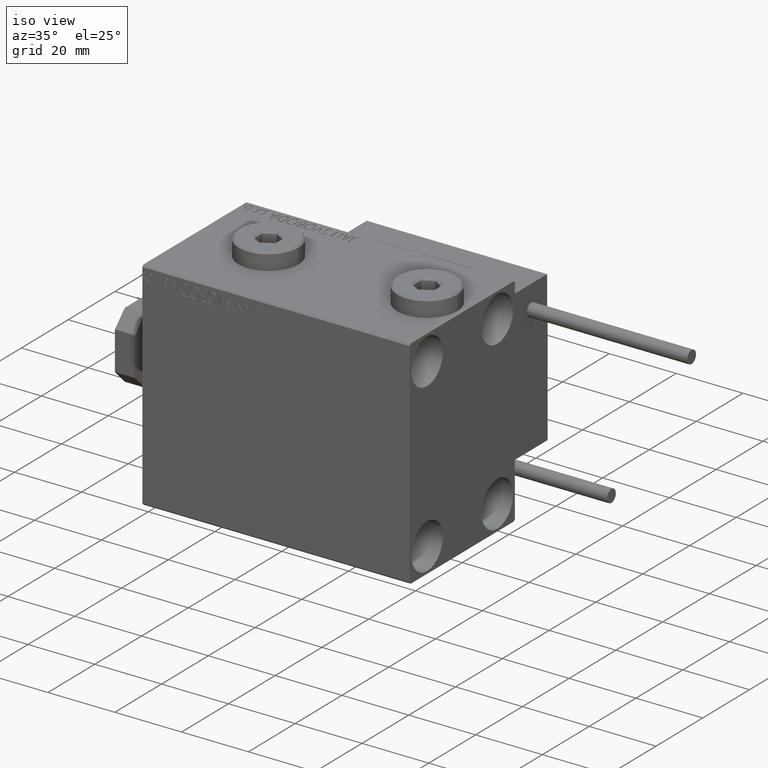
[diagram: clean part render]
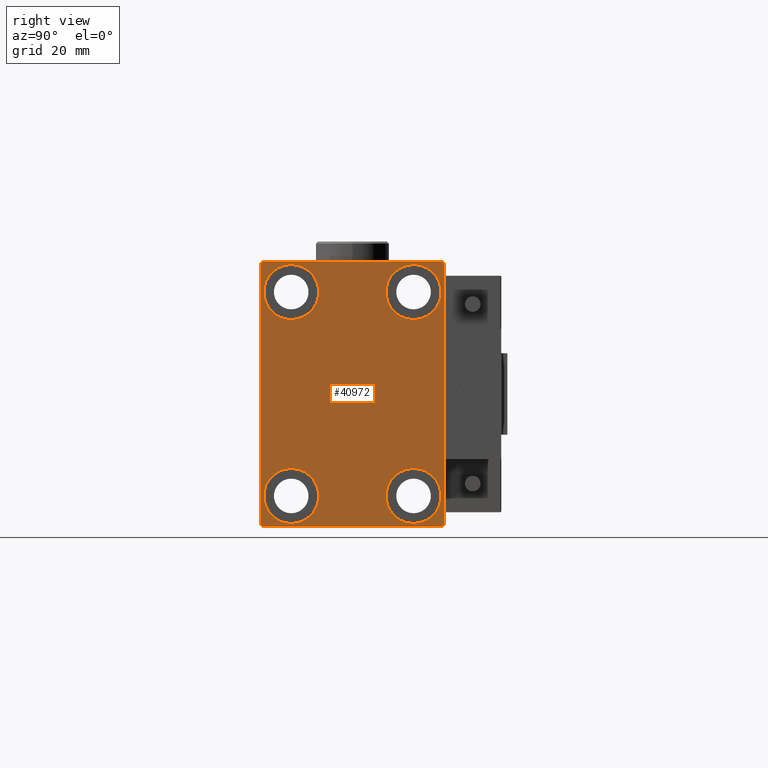
[diagram: tour spotlight — one face highlighted and labeled with its STEP entity id]
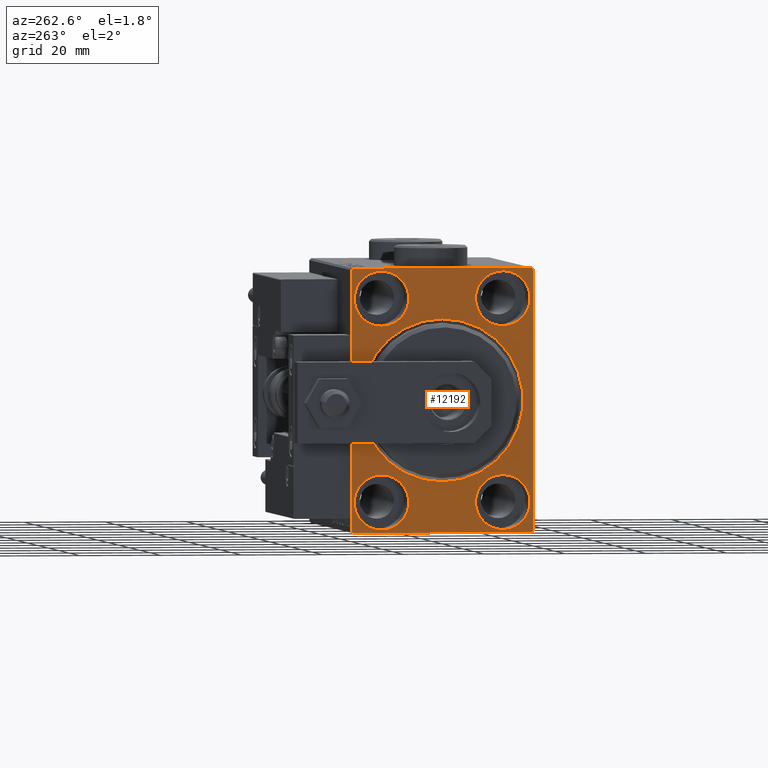
[diagram: tour spotlight — one face highlighted and labeled with its STEP entity id]
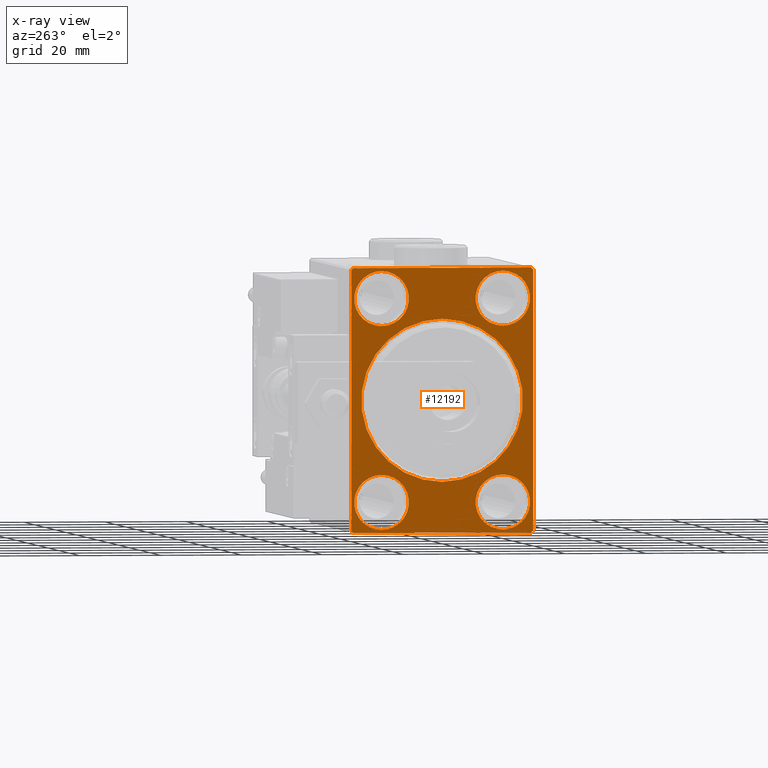
[diagram: x-ray of the same camera — body ghosted, this tour face saturated]
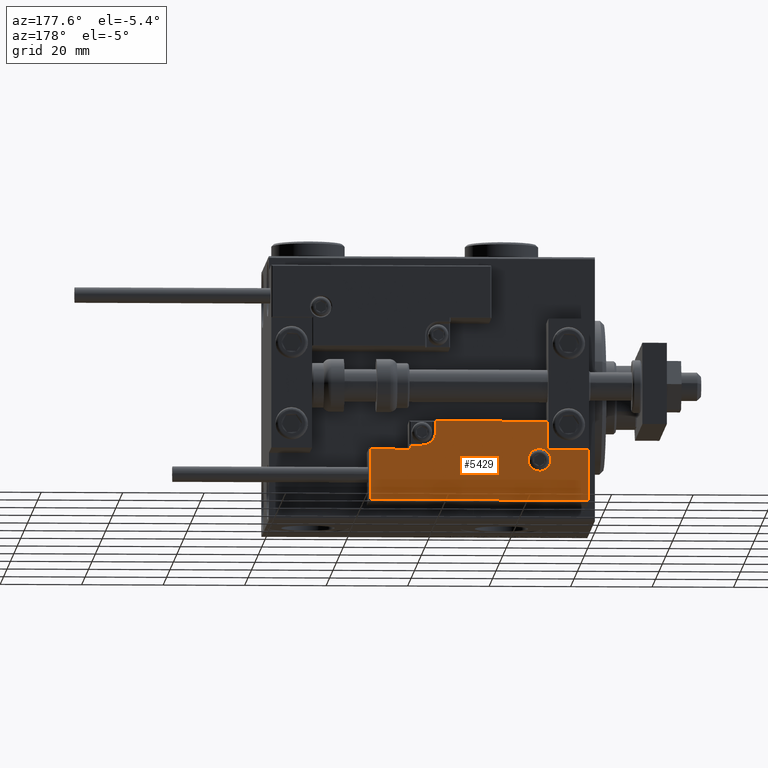
[diagram: tour spotlight — one face highlighted and labeled with its STEP entity id]
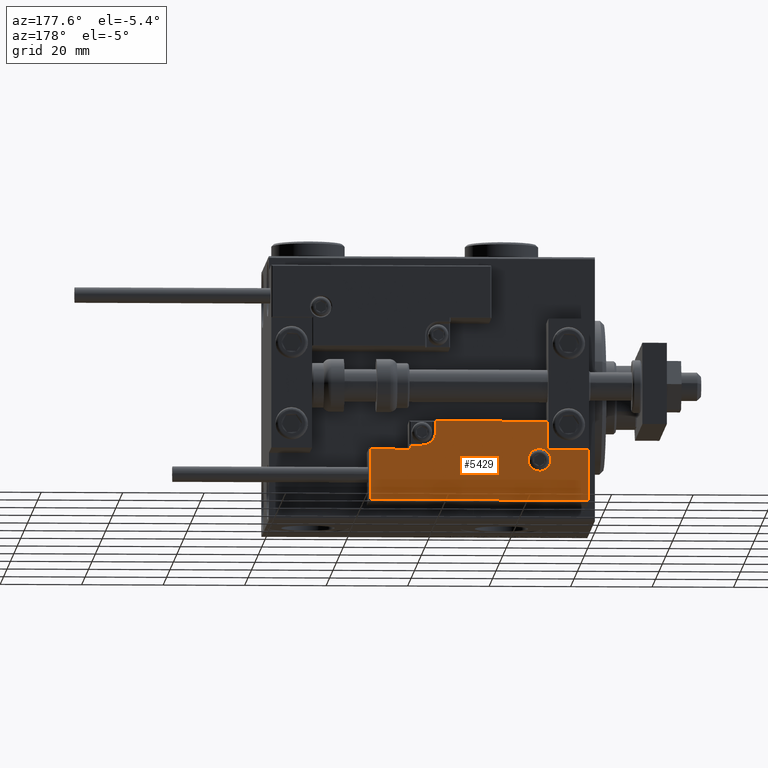
[diagram: tour spotlight — one face highlighted and labeled with its STEP entity id]
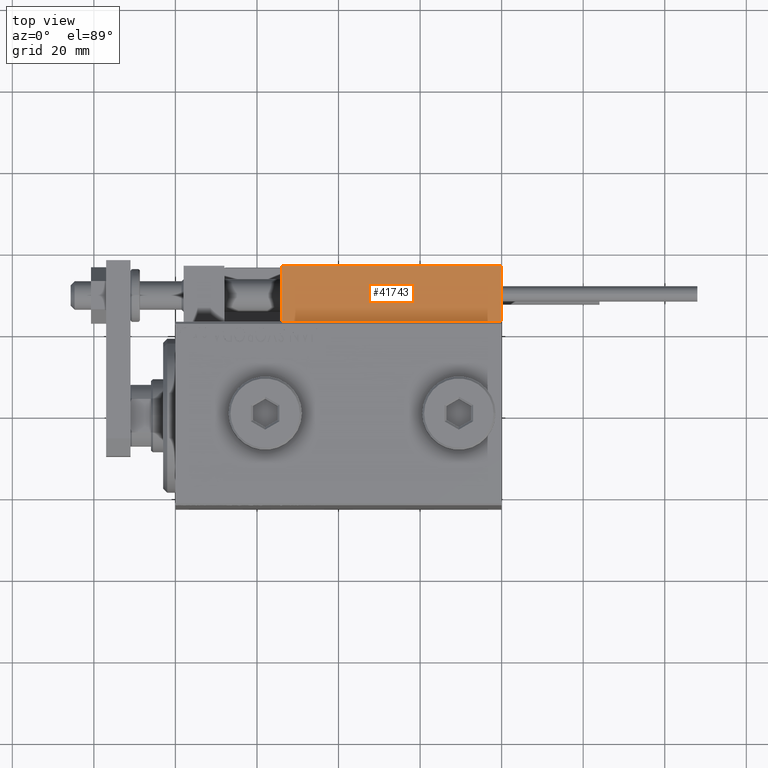
[diagram: tour spotlight — one face highlighted and labeled with its STEP entity id]
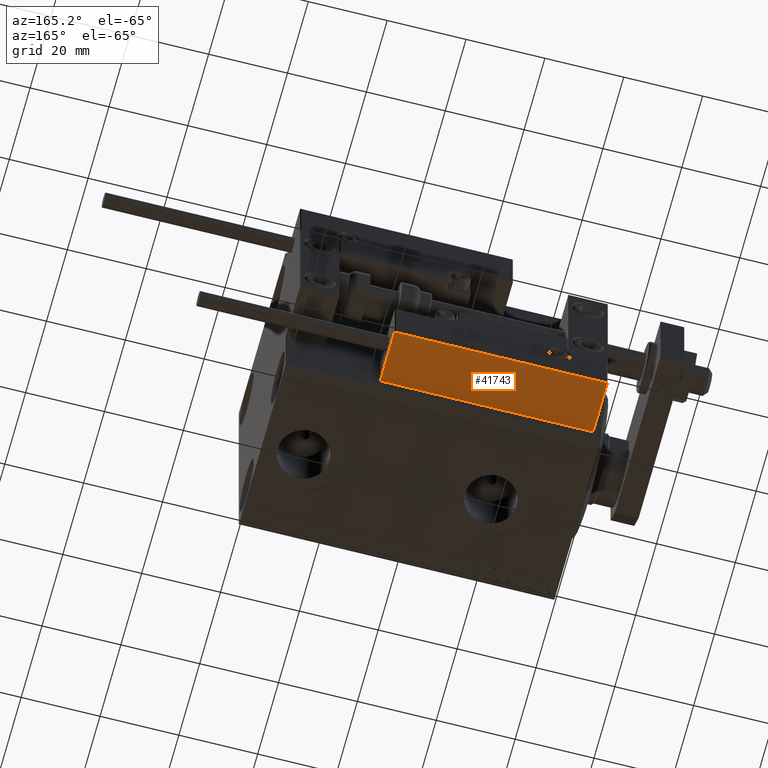
[diagram: tour spotlight — one face highlighted and labeled with its STEP entity id]
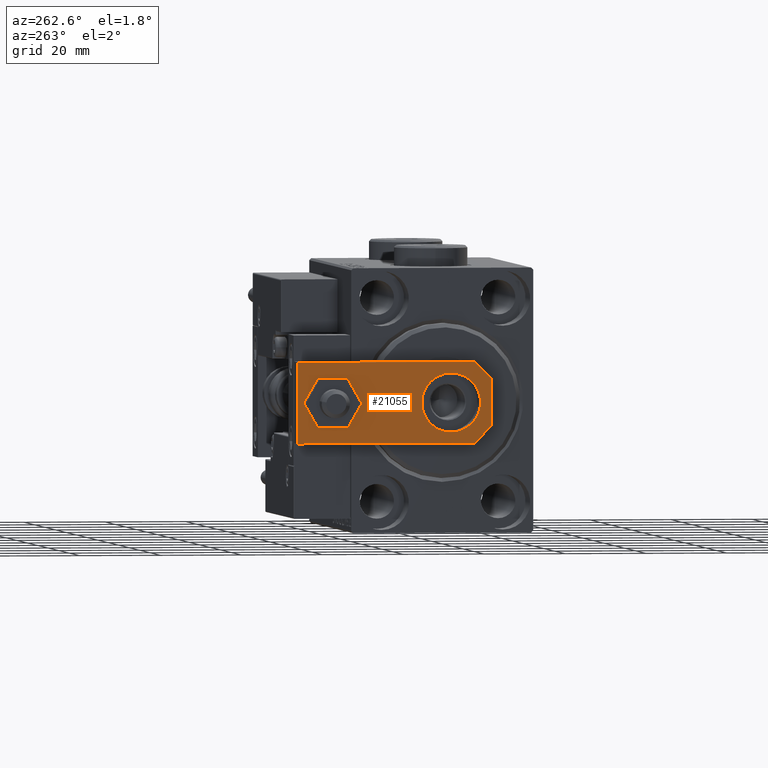
[diagram: tour spotlight — one face highlighted and labeled with its STEP entity id]
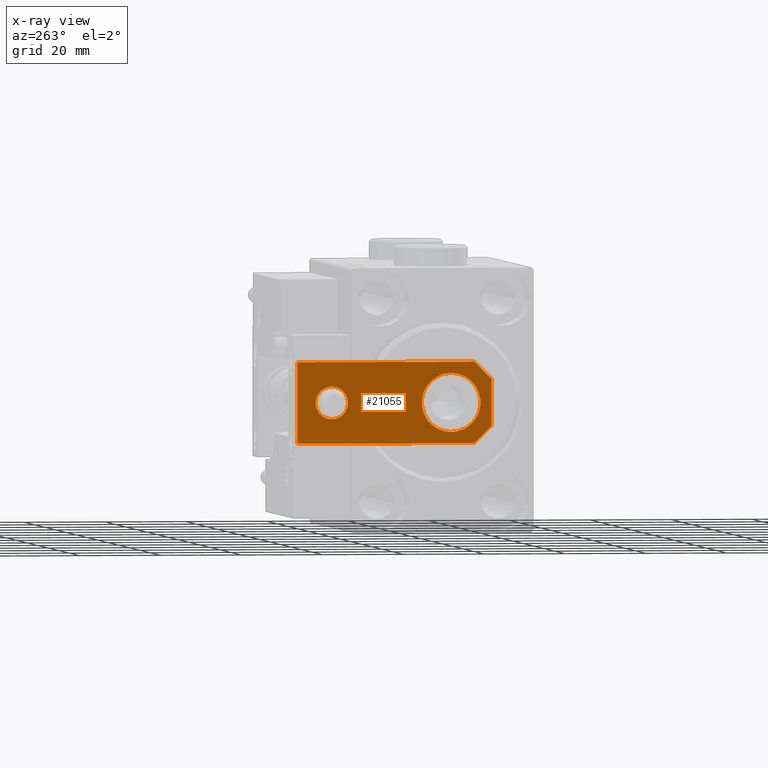
[diagram: x-ray of the same camera — body ghosted, this tour face saturated]
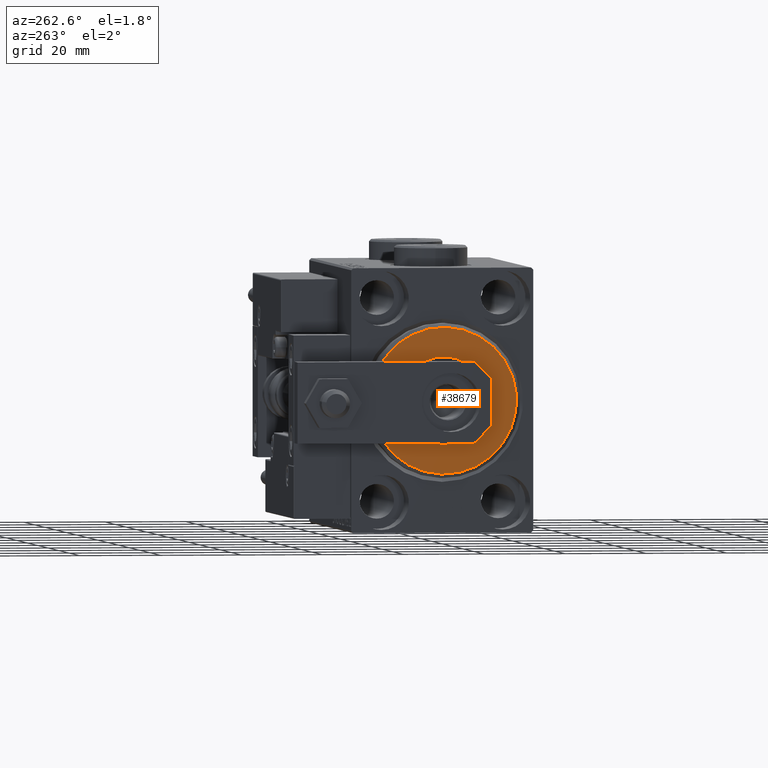
[diagram: tour spotlight — one face highlighted and labeled with its STEP entity id]
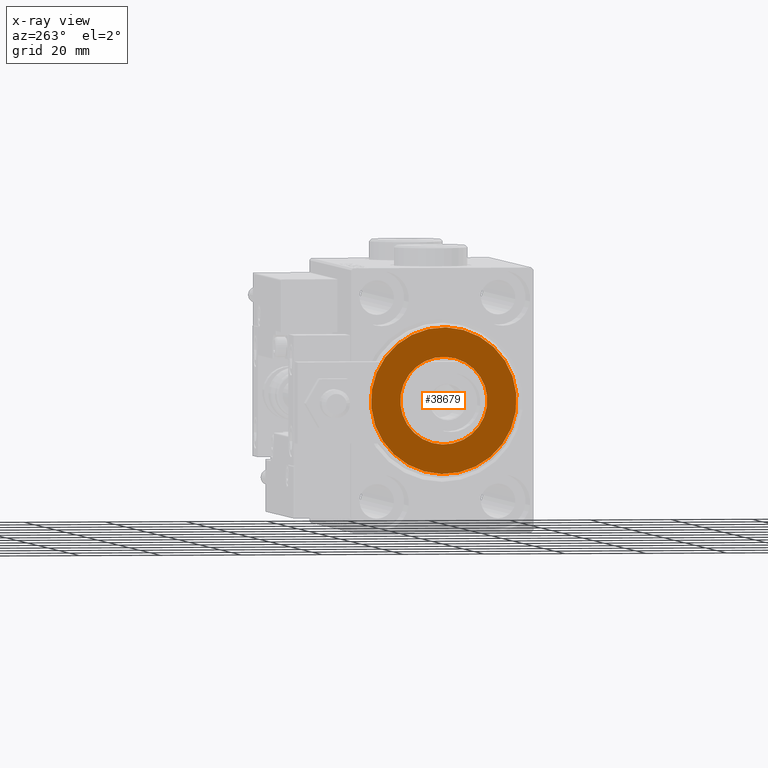
[diagram: x-ray of the same camera — body ghosted, this tour face saturated]
A machine part: a face-by-face anatomy tour. The part has 1336 B-rep faces; the first image is the clean iso view, then the 8 largest visible faces are spotlighted one at a time (largest first), each with its STEP entity span.

Face 1 — right view, entity #40972. In plain terms, the highlighted planar face has unit normal (1, 0, 0).
Definition (entity closure, byte-faithful):
#133 = VECTOR ( 'NONE', #15740, 1000.000000000000000 ) ;
#138 = DIRECTION ( 'NONE',  ( 0.000000000000000000, 0.000000000000000000, 1.000000000000000000 ) ) ;
#214 = ORIENTED_EDGE ( 'NONE', *, *, #25066, .T. ) ;
#362 = CARTESIAN_POINT ( 'NONE',  ( 80.00000000000000000, -22.50000000000000711, 32.49999999999999289 ) ) ;
#439 = DIRECTION ( 'NONE',  ( -0.000000000000000000, 0.7071067811865474617, -0.7071067811865474617 ) ) ;
#1025 = DIRECTION ( 'NONE',  ( -1.000000000000000000, -0.000000000000000000, -0.000000000000000000 ) ) ;
#1048 = CIRCLE ( 'NONE', #45997, 6.749999999999999112 ) ;
#1558 = DIRECTION ( 'NONE',  ( -1.000000000000000000, -0.000000000000000000, -0.000000000000000000 ) ) ;
#2088 = CIRCLE ( 'NONE', #30377, 6.749999999999999112 ) ;
#2221 = VERTEX_POINT ( 'NONE', #4257 ) ;
#3027 = EDGE_LOOP ( 'NONE', ( #5242, #33887 ) ) ;
#3219 = DIRECTION ( 'NONE',  ( 0.000000000000000000, 0.000000000000000000, 1.000000000000000000 ) ) ;
#3286 = VERTEX_POINT ( 'NONE', #33865 ) ;
#3430 = DIRECTION ( 'NONE',  ( 0.000000000000000000, 0.000000000000000000, 1.000000000000000000 ) ) ;
#3715 = CARTESIAN_POINT ( 'NONE',  ( 80.00000000000000000, -15.00000000000000355, -25.00000000000000000 ) ) ;
#4257 = CARTESIAN_POINT ( 'NONE',  ( 80.00000000000000000, 22.50000000000000000, -32.00000000000000711 ) ) ;
#4600 = EDGE_CURVE ( 'NONE', #40546, #39339, #14805, .T. ) ;
#4954 = ORIENTED_EDGE ( 'NONE', *, *, #29267, .T. ) ;
#5006 = CARTESIAN_POINT ( 'NONE',  ( 80.00000000000000000, 22.00000000000000711, 32.50000000000000000 ) ) ;
#5041 = VECTOR ( 'NONE', #47307, 1000.000000000000114 ) ;
#5242 = ORIENTED_EDGE ( 'NONE', *, *, #21343, .T. ) ;
#5411 = LINE ( 'NONE', #21072, #16727 ) ;
#5534 = DIRECTION ( 'NONE',  ( 0.000000000000000000, 0.000000000000000000, 1.000000000000000000 ) ) ;
#6277 = CARTESIAN_POINT ( 'NONE',  ( 80.00000000000000000, -14.99999999999999645, 31.75000000000000000 ) ) ;
#6285 = AXIS2_PLACEMENT_3D ( 'NONE', #3715, #27210, #3219 ) ;
#6375 = EDGE_CURVE ( 'NONE', #26927, #34860, #8268, .T. ) ;
#6503 = ORIENTED_EDGE ( 'NONE', *, *, #6375, .T. ) ;
#6904 = VERTEX_POINT ( 'NONE', #23289 ) ;
#6920 = AXIS2_PLACEMENT_3D ( 'NONE', #48997, #1558, #9378 ) ;
#7111 = DIRECTION ( 'NONE',  ( -0.000000000000000000, 0.7071067811865474617, 0.7071067811865474617 ) ) ;
#7616 = VECTOR ( 'NONE', #44206, 1000.000000000000000 ) ;
#8268 = LINE ( 'NONE', #31741, #39010 ) ;
#8623 = ORIENTED_EDGE ( 'NONE', *, *, #34845, .T. ) ;
#8685 = ORIENTED_EDGE ( 'NONE', *, *, #22737, .T. ) ;
#9378 = DIRECTION ( 'NONE',  ( 0.000000000000000000, 0.000000000000000000, 1.000000000000000000 ) ) ;
#10187 = DIRECTION ( 'NONE',  ( 0.000000000000000000, 0.000000000000000000, -1.000000000000000000 ) ) ;
#10891 = EDGE_CURVE ( 'NONE', #6904, #3286, #45396, .T. ) ;
#11029 = LINE ( 'NONE', #42808, #40701 ) ;
#12074 = CARTESIAN_POINT ( 'NONE',  ( 80.00000000000000000, 22.49999999999999289, 32.50000000000000000 ) ) ;
#12394 = DIRECTION ( 'NONE',  ( -1.000000000000000000, -0.000000000000000000, -0.000000000000000000 ) ) ;
#12762 = EDGE_CURVE ( 'NONE', #34860, #15386, #31630, .T. ) ;
#12986 = ORIENTED_EDGE ( 'NONE', *, *, #10891, .T. ) ;
#14805 = CIRCLE ( 'NONE', #30601, 6.749999999999999112 ) ;
#15184 = AXIS2_PLACEMENT_3D ( 'NONE', #20067, #1025, #36221 ) ;
#15386 = VERTEX_POINT ( 'NONE', #16591 ) ;
#15451 = ORIENTED_EDGE ( 'NONE', *, *, #15734, .T. ) ;
#15734 = EDGE_CURVE ( 'NONE', #18844, #26927, #28010, .T. ) ;
#15740 = DIRECTION ( 'NONE',  ( 0.000000000000000000, -1.000000000000000000, -1.541976423090495387E-16 ) ) ;
#15806 = CARTESIAN_POINT ( 'NONE',  ( 80.00000000000000000, 15.00000000000000355, 31.75000000000000000 ) ) ;
#15937 = CARTESIAN_POINT ( 'NONE',  ( 80.00000000000000000, -14.99999999999999645, 25.00000000000000000 ) ) ;
#16048 = CARTESIAN_POINT ( 'NONE',  ( 80.00000000000000000, -14.99999999999999645, 25.00000000000000000 ) ) ;
#16060 = DIRECTION ( 'NONE',  ( -1.000000000000000000, -0.000000000000000000, -0.000000000000000000 ) ) ;
#16320 = EDGE_LOOP ( 'NONE', ( #22275, #4954, #15451, #6503, #51441, #8685, #45790, #23439 ) ) ;
#16591 = CARTESIAN_POINT ( 'NONE',  ( 80.00000000000000000, 21.99999999999998579, -32.50000000000000711 ) ) ;
#16727 = VECTOR ( 'NONE', #20806, 999.9999999999998863 ) ;
#17237 = PLANE ( 'NONE',  #46724 ) ;
#18193 = CARTESIAN_POINT ( 'NONE',  ( 80.00000000000000000, 15.00000000000000355, 18.25000000000000355 ) ) ;
#18844 = VERTEX_POINT ( 'NONE', #47168 ) ;
#18852 = VECTOR ( 'NONE', #39451, 1000.000000000000000 ) ;
#19090 = DIRECTION ( 'NONE',  ( -1.000000000000000000, -0.000000000000000000, -0.000000000000000000 ) ) ;
#19169 = VERTEX_POINT ( 'NONE', #23831 ) ;
#19416 = EDGE_LOOP ( 'NONE', ( #12986, #214 ) ) ;
#20067 = CARTESIAN_POINT ( 'NONE',  ( 80.00000000000000000, 15.00000000000000355, 25.00000000000000000 ) ) ;
#20192 = CIRCLE ( 'NONE', #6920, 6.749999999999999112 ) ;
#20223 = DIRECTION ( 'NONE',  ( 0.000000000000000000, 0.000000000000000000, 1.000000000000000000 ) ) ;
#20806 = DIRECTION ( 'NONE',  ( -0.000000000000000000, -0.7071067811865525687, 0.7071067811865425767 ) ) ;
#21072 = CARTESIAN_POINT ( 'NONE',  ( 80.00000000000000000, 27.24999999999985079, 27.25000000000023093 ) ) ;
#21343 = EDGE_CURVE ( 'NONE', #22367, #46782, #51454, .T. ) ;
#22275 = ORIENTED_EDGE ( 'NONE', *, *, #32460, .T. ) ;
#22367 = VERTEX_POINT ( 'NONE', #18193 ) ;
#22737 = EDGE_CURVE ( 'NONE', #15386, #2221, #11029, .T. ) ;
#23147 = VERTEX_POINT ( 'NONE', #23964 ) ;
#23289 = CARTESIAN_POINT ( 'NONE',  ( 80.00000000000000000, -15.00000000000000355, -31.75000000000000000 ) ) ;
#23300 = CARTESIAN_POINT ( 'NONE',  ( 80.00000000000000000, -22.50000000000000711, -32.50000000000000711 ) ) ;
#23439 = ORIENTED_EDGE ( 'NONE', *, *, #37061, .T. ) ;
#23831 = CARTESIAN_POINT ( 'NONE',  ( 80.00000000000000000, 14.99999999999999645, -18.25000000000000355 ) ) ;
#23964 = CARTESIAN_POINT ( 'NONE',  ( 80.00000000000000000, 14.99999999999999645, -31.75000000000000000 ) ) ;
#24829 = CARTESIAN_POINT ( 'NONE',  ( 80.00000000000000000, -14.99999999999999645, 18.25000000000000355 ) ) ;
#25066 = EDGE_CURVE ( 'NONE', #3286, #6904, #49072, .T. ) ;
#25570 = DIRECTION ( 'NONE',  ( 1.000000000000000000, 0.000000000000000000, 0.000000000000000000 ) ) ;
#25820 = FACE_BOUND ( 'NONE', #19416, .T. ) ;
#25868 = DIRECTION ( 'NONE',  ( -1.000000000000000000, -0.000000000000000000, -0.000000000000000000 ) ) ;
#26393 = CARTESIAN_POINT ( 'NONE',  ( 80.00000000000000000, 14.99999999999999645, -25.00000000000000000 ) ) ;
#26927 = VERTEX_POINT ( 'NONE', #40579 ) ;
#27210 = DIRECTION ( 'NONE',  ( -1.000000000000000000, -0.000000000000000000, -0.000000000000000000 ) ) ;
#27505 = CARTESIAN_POINT ( 'NONE',  ( 80.00000000000000000, -27.25000000000000711, 27.25000000000000711 ) ) ;
#28010 = LINE ( 'NONE', #362, #47110 ) ;
#28550 = EDGE_LOOP ( 'NONE', ( #31143, #8623 ) ) ;
#28753 = ORIENTED_EDGE ( 'NONE', *, *, #49814, .T. ) ;
#28821 = VERTEX_POINT ( 'NONE', #43365 ) ;
#29267 = EDGE_CURVE ( 'NONE', #30192, #18844, #43389, .T. ) ;
#29986 = FACE_BOUND ( 'NONE', #28550, .T. ) ;
#30192 = VERTEX_POINT ( 'NONE', #37628 ) ;
#30310 = DIRECTION ( 'NONE',  ( 0.000000000000000000, 0.000000000000000000, 1.000000000000000000 ) ) ;
#30377 = AXIS2_PLACEMENT_3D ( 'NONE', #15937, #19090, #3430 ) ;
#30601 = AXIS2_PLACEMENT_3D ( 'NONE', #16048, #12394, #138 ) ;
#31143 = ORIENTED_EDGE ( 'NONE', *, *, #44442, .T. ) ;
#31630 = LINE ( 'NONE', #23300, #18852 ) ;
#31741 = CARTESIAN_POINT ( 'NONE',  ( 80.00000000000000000, -27.25000000000000711, -27.25000000000000711 ) ) ;
#32204 = CARTESIAN_POINT ( 'NONE',  ( 80.00000000000000000, 15.00000000000000355, 25.00000000000000000 ) ) ;
#32460 = EDGE_CURVE ( 'NONE', #35513, #30192, #47775, .T. ) ;
#32871 = FACE_OUTER_BOUND ( 'NONE', #16320, .T. ) ;
#33137 = CARTESIAN_POINT ( 'NONE',  ( 80.00000000000000000, 0.000000000000000000, 0.000000000000000000 ) ) ;
#33389 = ORIENTED_EDGE ( 'NONE', *, *, #4600, .T. ) ;
#33390 = FACE_BOUND ( 'NONE', #46874, .T. ) ;
#33865 = CARTESIAN_POINT ( 'NONE',  ( 80.00000000000000000, -15.00000000000000355, -18.25000000000000355 ) ) ;
#33887 = ORIENTED_EDGE ( 'NONE', *, *, #39534, .T. ) ;
#34227 = CARTESIAN_POINT ( 'NONE',  ( 80.00000000000000000, -15.00000000000000355, -25.00000000000000000 ) ) ;
#34361 = CARTESIAN_POINT ( 'NONE',  ( 80.00000000000000000, 22.50000000000000000, -32.50000000000000711 ) ) ;
#34845 = EDGE_CURVE ( 'NONE', #19169, #23147, #20192, .T. ) ;
#34860 = VERTEX_POINT ( 'NONE', #46374 ) ;
#35513 = VERTEX_POINT ( 'NONE', #5006 ) ;
#36221 = DIRECTION ( 'NONE',  ( 0.000000000000000000, 0.000000000000000000, 1.000000000000000000 ) ) ;
#37061 = EDGE_CURVE ( 'NONE', #28821, #35513, #5411, .T. ) ;
#37628 = CARTESIAN_POINT ( 'NONE',  ( 80.00000000000000000, -22.00000000000000711, 32.49999999999999289 ) ) ;
#37636 = CIRCLE ( 'NONE', #15184, 6.749999999999999112 ) ;
#38263 = LINE ( 'NONE', #34361, #7616 ) ;
#39010 = VECTOR ( 'NONE', #439, 1000.000000000000114 ) ;
#39339 = VERTEX_POINT ( 'NONE', #6277 ) ;
#39451 = DIRECTION ( 'NONE',  ( 0.000000000000000000, 1.000000000000000000, 0.000000000000000000 ) ) ;
#39534 = EDGE_CURVE ( 'NONE', #46782, #22367, #37636, .T. ) ;
#40546 = VERTEX_POINT ( 'NONE', #24829 ) ;
#40579 = CARTESIAN_POINT ( 'NONE',  ( 80.00000000000000000, -22.50000000000000711, -32.00000000000000711 ) ) ;
#40701 = VECTOR ( 'NONE', #7111, 1000.000000000000114 ) ;
#40972 = ADVANCED_FACE ( 'NONE', ( #29986, #33390, #45120, #25820, #32871 ), #17237, .T. ) ;
#41594 = EDGE_CURVE ( 'NONE', #2221, #28821, #38263, .T. ) ;
#42808 = CARTESIAN_POINT ( 'NONE',  ( 80.00000000000000000, 27.25000000000000355, -27.25000000000000355 ) ) ;
#43365 = CARTESIAN_POINT ( 'NONE',  ( 80.00000000000000000, 22.49999999999999289, 32.00000000000002132 ) ) ;
#43389 = LINE ( 'NONE', #27505, #5041 ) ;
#44206 = DIRECTION ( 'NONE',  ( 0.000000000000000000, -1.067522139062650425E-16, 1.000000000000000000 ) ) ;
#44442 = EDGE_CURVE ( 'NONE', #23147, #19169, #1048, .T. ) ;
#45120 = FACE_BOUND ( 'NONE', #3027, .T. ) ;
#45396 = CIRCLE ( 'NONE', #6285, 6.749999999999999112 ) ;
#45790 = ORIENTED_EDGE ( 'NONE', *, *, #41594, .T. ) ;
#45997 = AXIS2_PLACEMENT_3D ( 'NONE', #26393, #25868, #5534 ) ;
#46374 = CARTESIAN_POINT ( 'NONE',  ( 80.00000000000000000, -22.00000000000000711, -32.50000000000000711 ) ) ;
#46724 = AXIS2_PLACEMENT_3D ( 'NONE', #33137, #25570, #10187 ) ;
#46782 = VERTEX_POINT ( 'NONE', #15806 ) ;
#46874 = EDGE_LOOP ( 'NONE', ( #33389, #28753 ) ) ;
#47110 = VECTOR ( 'NONE', #48580, 1000.000000000000000 ) ;
#47168 = CARTESIAN_POINT ( 'NONE',  ( 80.00000000000000000, -22.50000000000000711, 32.00000000000000711 ) ) ;
#47307 = DIRECTION ( 'NONE',  ( 0.000000000000000000, -0.7071067811865474617, -0.7071067811865474617 ) ) ;
#47470 = AXIS2_PLACEMENT_3D ( 'NONE', #34227, #50110, #30310 ) ;
#47775 = LINE ( 'NONE', #12074, #133 ) ;
#48134 = AXIS2_PLACEMENT_3D ( 'NONE', #32204, #16060, #20223 ) ;
#48580 = DIRECTION ( 'NONE',  ( 0.000000000000000000, 0.000000000000000000, -1.000000000000000000 ) ) ;
#48997 = CARTESIAN_POINT ( 'NONE',  ( 80.00000000000000000, 14.99999999999999645, -25.00000000000000000 ) ) ;
#49072 = CIRCLE ( 'NONE', #47470, 6.749999999999999112 ) ;
#49814 = EDGE_CURVE ( 'NONE', #39339, #40546, #2088, .T. ) ;
#50110 = DIRECTION ( 'NONE',  ( -1.000000000000000000, -0.000000000000000000, -0.000000000000000000 ) ) ;
#51441 = ORIENTED_EDGE ( 'NONE', *, *, #12762, .T. ) ;
#51454 = CIRCLE ( 'NONE', #48134, 6.749999999999999112 ) ;

Face 2 — auxiliary view, entity #12192. An x-ray twin of the same camera follows (body ghosted, this face saturated) — the face is partly hidden behind the body. In plain terms, the highlighted planar face has unit normal (1, 0, 0).
Definition (entity closure, byte-faithful):
#155 = VERTEX_POINT ( 'NONE', #6916 ) ;
#727 = ORIENTED_EDGE ( 'NONE', *, *, #11439, .T. ) ;
#763 = ORIENTED_EDGE ( 'NONE', *, *, #11634, .F. ) ;
#764 = EDGE_CURVE ( 'NONE', #42253, #40142, #15658, .T. ) ;
#2098 = ORIENTED_EDGE ( 'NONE', *, *, #7354, .F. ) ;
#2593 = CARTESIAN_POINT ( 'NONE',  ( 0.000000000000000000, 15.00000000000000355, 25.00000000000000000 ) ) ;
#2844 = DIRECTION ( 'NONE',  ( 0.000000000000000000, 0.000000000000000000, -1.000000000000000000 ) ) ;
#3165 = FACE_BOUND ( 'NONE', #41098, .T. ) ;
#3478 = AXIS2_PLACEMENT_3D ( 'NONE', #2593, #9646, #25553 ) ;
#3758 = VERTEX_POINT ( 'NONE', #13425 ) ;
#3979 = AXIS2_PLACEMENT_3D ( 'NONE', #50541, #51062, #11450 ) ;
#4360 = DIRECTION ( 'NONE',  ( 0.000000000000000000, 0.000000000000000000, -1.000000000000000000 ) ) ;
#4851 = CARTESIAN_POINT ( 'NONE',  ( 0.000000000000000000, -15.00000000000000355, -25.00000000000000000 ) ) ;
#4988 = ORIENTED_EDGE ( 'NONE', *, *, #29189, .T. ) ;
#5061 = AXIS2_PLACEMENT_3D ( 'NONE', #19193, #26759, #42893 ) ;
#5416 = ORIENTED_EDGE ( 'NONE', *, *, #35817, .F. ) ;
#5875 = DIRECTION ( 'NONE',  ( 0.000000000000000000, 0.000000000000000000, 1.000000000000000000 ) ) ;
#6040 = EDGE_CURVE ( 'NONE', #38249, #50246, #8579, .T. ) ;
#6758 = CARTESIAN_POINT ( 'NONE',  ( 0.000000000000000000, -22.50000000000000711, 32.49999999999999289 ) ) ;
#6916 = CARTESIAN_POINT ( 'NONE',  ( 0.000000000000000000, -22.50000000000000711, 32.00000000000000711 ) ) ;
#7129 = DIRECTION ( 'NONE',  ( -0.000000000000000000, 0.7071067811865525687, -0.7071067811865425767 ) ) ;
#7354 = EDGE_CURVE ( 'NONE', #38249, #30954, #31303, .T. ) ;
#7489 = ORIENTED_EDGE ( 'NONE', *, *, #37868, .F. ) ;
#7542 = AXIS2_PLACEMENT_3D ( 'NONE', #37340, #33426, #45405 ) ;
#8502 = EDGE_LOOP ( 'NONE', ( #10713, #41897 ) ) ;
#8579 = LINE ( 'NONE', #38925, #34830 ) ;
#8807 = AXIS2_PLACEMENT_3D ( 'NONE', #43717, #39822, #19764 ) ;
#9243 = CIRCLE ( 'NONE', #5061, 6.749999999999999112 ) ;
#9646 = DIRECTION ( 'NONE',  ( -1.000000000000000000, 0.000000000000000000, 0.000000000000000000 ) ) ;
#10713 = ORIENTED_EDGE ( 'NONE', *, *, #35519, .F. ) ;
#11439 = EDGE_CURVE ( 'NONE', #22549, #29528, #19590, .T. ) ;
#11450 = DIRECTION ( 'NONE',  ( 0.000000000000000000, 0.000000000000000000, 1.000000000000000000 ) ) ;
#11634 = EDGE_CURVE ( 'NONE', #31085, #12927, #48736, .T. ) ;
#12192 = ADVANCED_FACE ( 'NONE', ( #43292, #3165, #51117, #34461, #50083, #22728 ), #30802, .F. ) ;
#12511 = CARTESIAN_POINT ( 'NONE',  ( 0.000000000000000000, 0.000000000000000000, 0.000000000000000000 ) ) ;
#12927 = VERTEX_POINT ( 'NONE', #32650 ) ;
#13425 = CARTESIAN_POINT ( 'NONE',  ( 0.000000000000000000, 15.00000000000000355, 18.25000000000000355 ) ) ;
#14021 = EDGE_LOOP ( 'NONE', ( #763, #34394 ) ) ;
#14179 = CIRCLE ( 'NONE', #50786, 19.99999999999998934 ) ;
#14394 = DIRECTION ( 'NONE',  ( 1.000000000000000000, 0.000000000000000000, 0.000000000000000000 ) ) ;
#14623 = LINE ( 'NONE', #50571, #15038 ) ;
#14813 = CARTESIAN_POINT ( 'NONE',  ( 0.000000000000000000, 22.50000000000000000, -32.50000000000000711 ) ) ;
#14914 = DIRECTION ( 'NONE',  ( -1.000000000000000000, 0.000000000000000000, 0.000000000000000000 ) ) ;
#14941 = ORIENTED_EDGE ( 'NONE', *, *, #41737, .F. ) ;
#15009 = DIRECTION ( 'NONE',  ( 0.000000000000000000, -0.7071067811865474617, -0.7071067811865474617 ) ) ;
#15038 = VECTOR ( 'NONE', #43764, 1000.000000000000000 ) ;
#15419 = CARTESIAN_POINT ( 'NONE',  ( 0.000000000000000000, 0.000000000000000000, 0.000000000000000000 ) ) ;
#15459 = CARTESIAN_POINT ( 'NONE',  ( 0.000000000000000000, 22.00000000000000711, 32.50000000000000000 ) ) ;
#15658 = CIRCLE ( 'NONE', #3979, 6.749999999999999112 ) ;
#15870 = VECTOR ( 'NONE', #17528, 1000.000000000000114 ) ;
#17377 = DIRECTION ( 'NONE',  ( -1.000000000000000000, 0.000000000000000000, 0.000000000000000000 ) ) ;
#17420 = VERTEX_POINT ( 'NONE', #26634 ) ;
#17528 = DIRECTION ( 'NONE',  ( -0.000000000000000000, -0.7071067811865474617, 0.7071067811865474617 ) ) ;
#17602 = EDGE_LOOP ( 'NONE', ( #5416, #39161, #2098, #39713, #50770, #4988, #45182, #40588 ) ) ;
#19193 = CARTESIAN_POINT ( 'NONE',  ( 0.000000000000000000, 14.99999999999999645, -25.00000000000000000 ) ) ;
#19321 = CIRCLE ( 'NONE', #35929, 6.749999999999999112 ) ;
#19517 = CIRCLE ( 'NONE', #33682, 6.749999999999999112 ) ;
#19590 = CIRCLE ( 'NONE', #48703, 19.99999999999998934 ) ;
#19764 = DIRECTION ( 'NONE',  ( 0.000000000000000000, 0.000000000000000000, 1.000000000000000000 ) ) ;
#20021 = VERTEX_POINT ( 'NONE', #20502 ) ;
#20075 = CARTESIAN_POINT ( 'NONE',  ( 0.000000000000000000, 22.49999999999999289, 32.50000000000000000 ) ) ;
#20243 = CARTESIAN_POINT ( 'NONE',  ( 0.000000000000000000, -22.50000000000000711, 32.00000000000000711 ) ) ;
#20435 = CARTESIAN_POINT ( 'NONE',  ( 0.000000000000000000, -14.99999999999999645, 18.25000000000000355 ) ) ;
#20502 = CARTESIAN_POINT ( 'NONE',  ( 0.000000000000000000, -22.00000000000000711, -32.50000000000000711 ) ) ;
#21212 = VERTEX_POINT ( 'NONE', #42915 ) ;
#21586 = EDGE_LOOP ( 'NONE', ( #29660, #727 ) ) ;
#21942 = DIRECTION ( 'NONE',  ( 0.000000000000000000, 0.000000000000000000, 1.000000000000000000 ) ) ;
#22549 = VERTEX_POINT ( 'NONE', #24340 ) ;
#22608 = VECTOR ( 'NONE', #43449, 1000.000000000000114 ) ;
#22728 = FACE_OUTER_BOUND ( 'NONE', #17602, .T. ) ;
#23239 = DIRECTION ( 'NONE',  ( 0.000000000000000000, 0.000000000000000000, -1.000000000000000000 ) ) ;
#23327 = LINE ( 'NONE', #50699, #27534 ) ;
#23474 = CARTESIAN_POINT ( 'NONE',  ( 0.000000000000000000, -22.00000000000000711, 32.49999999999999289 ) ) ;
#23663 = CARTESIAN_POINT ( 'NONE',  ( 0.000000000000000000, -15.00000000000000355, -18.25000000000000355 ) ) ;
#23935 = CARTESIAN_POINT ( 'NONE',  ( 0.000000000000000000, 0.000000000000000000, 0.000000000000000000 ) ) ;
#24157 = LINE ( 'NONE', #20243, #22608 ) ;
#24340 = CARTESIAN_POINT ( 'NONE',  ( 0.000000000000000000, 2.449293598294705330E-15, -19.99999999999998934 ) ) ;
#25525 = EDGE_CURVE ( 'NONE', #21212, #50246, #50496, .T. ) ;
#25553 = DIRECTION ( 'NONE',  ( 0.000000000000000000, 0.000000000000000000, 1.000000000000000000 ) ) ;
#25848 = VECTOR ( 'NONE', #2844, 1000.000000000000000 ) ;
#26634 = CARTESIAN_POINT ( 'NONE',  ( 0.000000000000000000, 15.00000000000000355, 31.75000000000000000 ) ) ;
#26759 = DIRECTION ( 'NONE',  ( -1.000000000000000000, 0.000000000000000000, 0.000000000000000000 ) ) ;
#27534 = VECTOR ( 'NONE', #15009, 1000.000000000000114 ) ;
#27562 = VERTEX_POINT ( 'NONE', #31997 ) ;
#27902 = DIRECTION ( 'NONE',  ( 0.000000000000000000, 0.000000000000000000, -1.000000000000000000 ) ) ;
#28285 = EDGE_CURVE ( 'NONE', #29528, #22549, #14179, .T. ) ;
#29189 = EDGE_CURVE ( 'NONE', #21212, #33117, #23327, .T. ) ;
#29528 = VERTEX_POINT ( 'NONE', #44923 ) ;
#29660 = ORIENTED_EDGE ( 'NONE', *, *, #28285, .T. ) ;
#29884 = EDGE_CURVE ( 'NONE', #20021, #33117, #14623, .T. ) ;
#30021 = CARTESIAN_POINT ( 'NONE',  ( 0.000000000000000000, -14.99999999999999645, 25.00000000000000000 ) ) ;
#30789 = ORIENTED_EDGE ( 'NONE', *, *, #764, .F. ) ;
#30802 = PLANE ( 'NONE',  #45428 ) ;
#30954 = VERTEX_POINT ( 'NONE', #23474 ) ;
#31085 = VERTEX_POINT ( 'NONE', #23663 ) ;
#31303 = LINE ( 'NONE', #20075, #39057 ) ;
#31810 = DIRECTION ( 'NONE',  ( 1.000000000000000000, 0.000000000000000000, 0.000000000000000000 ) ) ;
#31997 = CARTESIAN_POINT ( 'NONE',  ( 0.000000000000000000, -22.50000000000000711, -32.00000000000000711 ) ) ;
#32650 = CARTESIAN_POINT ( 'NONE',  ( 0.000000000000000000, -15.00000000000000355, -31.75000000000000000 ) ) ;
#32935 = EDGE_CURVE ( 'NONE', #3758, #17420, #33441, .T. ) ;
#33117 = VERTEX_POINT ( 'NONE', #36437 ) ;
#33426 = DIRECTION ( 'NONE',  ( -1.000000000000000000, 0.000000000000000000, 0.000000000000000000 ) ) ;
#33441 = CIRCLE ( 'NONE', #3478, 6.749999999999999112 ) ;
#33682 = AXIS2_PLACEMENT_3D ( 'NONE', #4851, #48642, #44991 ) ;
#33858 = VERTEX_POINT ( 'NONE', #51324 ) ;
#34165 = VECTOR ( 'NONE', #51263, 1000.000000000000000 ) ;
#34394 = ORIENTED_EDGE ( 'NONE', *, *, #48799, .F. ) ;
#34461 = FACE_BOUND ( 'NONE', #8502, .T. ) ;
#34549 = ORIENTED_EDGE ( 'NONE', *, *, #39975, .F. ) ;
#34830 = VECTOR ( 'NONE', #7129, 999.9999999999998863 ) ;
#35022 = CARTESIAN_POINT ( 'NONE',  ( 0.000000000000000000, 14.99999999999999645, -31.75000000000000000 ) ) ;
#35451 = EDGE_CURVE ( 'NONE', #20021, #27562, #44107, .T. ) ;
#35519 = EDGE_CURVE ( 'NONE', #17420, #3758, #47502, .T. ) ;
#35817 = EDGE_CURVE ( 'NONE', #155, #27562, #49510, .T. ) ;
#35929 = AXIS2_PLACEMENT_3D ( 'NONE', #30021, #14914, #21942 ) ;
#35982 = DIRECTION ( 'NONE',  ( 0.000000000000000000, -1.000000000000000000, -1.541976423090495387E-16 ) ) ;
#36437 = CARTESIAN_POINT ( 'NONE',  ( 0.000000000000000000, 21.99999999999998579, -32.50000000000000711 ) ) ;
#37340 = CARTESIAN_POINT ( 'NONE',  ( 0.000000000000000000, 15.00000000000000355, 25.00000000000000000 ) ) ;
#37868 = EDGE_CURVE ( 'NONE', #38049, #33858, #19321, .T. ) ;
#38049 = VERTEX_POINT ( 'NONE', #20435 ) ;
#38249 = VERTEX_POINT ( 'NONE', #15459 ) ;
#38925 = CARTESIAN_POINT ( 'NONE',  ( 0.000000000000000000, 22.00000000000000711, 32.50000000000000000 ) ) ;
#39057 = VECTOR ( 'NONE', #35982, 1000.000000000000000 ) ;
#39161 = ORIENTED_EDGE ( 'NONE', *, *, #41695, .T. ) ;
#39713 = ORIENTED_EDGE ( 'NONE', *, *, #6040, .T. ) ;
#39822 = DIRECTION ( 'NONE',  ( -1.000000000000000000, 0.000000000000000000, 0.000000000000000000 ) ) ;
#39975 = EDGE_CURVE ( 'NONE', #40142, #42253, #9243, .T. ) ;
#40081 = DIRECTION ( 'NONE',  ( 1.000000000000000000, 0.000000000000000000, 0.000000000000000000 ) ) ;
#40142 = VERTEX_POINT ( 'NONE', #44163 ) ;
#40221 = CARTESIAN_POINT ( 'NONE',  ( 0.000000000000000000, 22.49999999999999289, 32.00000000000002132 ) ) ;
#40453 = CARTESIAN_POINT ( 'NONE',  ( 0.000000000000000000, -22.00000000000000711, -32.50000000000000711 ) ) ;
#40588 = ORIENTED_EDGE ( 'NONE', *, *, #35451, .T. ) ;
#41077 = CARTESIAN_POINT ( 'NONE',  ( 0.000000000000000000, -14.99999999999999645, 25.00000000000000000 ) ) ;
#41098 = EDGE_LOOP ( 'NONE', ( #34549, #30789 ) ) ;
#41695 = EDGE_CURVE ( 'NONE', #155, #30954, #24157, .T. ) ;
#41737 = EDGE_CURVE ( 'NONE', #33858, #38049, #44204, .T. ) ;
#41897 = ORIENTED_EDGE ( 'NONE', *, *, #32935, .F. ) ;
#42253 = VERTEX_POINT ( 'NONE', #35022 ) ;
#42893 = DIRECTION ( 'NONE',  ( 0.000000000000000000, 0.000000000000000000, 1.000000000000000000 ) ) ;
#42915 = CARTESIAN_POINT ( 'NONE',  ( 0.000000000000000000, 22.50000000000000000, -32.00000000000000711 ) ) ;
#43292 = FACE_BOUND ( 'NONE', #21586, .T. ) ;
#43449 = DIRECTION ( 'NONE',  ( -0.000000000000000000, 0.7071067811865474617, 0.7071067811865474617 ) ) ;
#43717 = CARTESIAN_POINT ( 'NONE',  ( 0.000000000000000000, -15.00000000000000355, -25.00000000000000000 ) ) ;
#43764 = DIRECTION ( 'NONE',  ( 0.000000000000000000, 1.000000000000000000, 0.000000000000000000 ) ) ;
#44107 = LINE ( 'NONE', #40453, #15870 ) ;
#44163 = CARTESIAN_POINT ( 'NONE',  ( 0.000000000000000000, 14.99999999999999645, -18.25000000000000355 ) ) ;
#44204 = CIRCLE ( 'NONE', #50887, 6.749999999999999112 ) ;
#44923 = CARTESIAN_POINT ( 'NONE',  ( 0.000000000000000000, 0.000000000000000000, 19.99999999999998934 ) ) ;
#44991 = DIRECTION ( 'NONE',  ( 0.000000000000000000, 0.000000000000000000, 1.000000000000000000 ) ) ;
#45182 = ORIENTED_EDGE ( 'NONE', *, *, #29884, .F. ) ;
#45405 = DIRECTION ( 'NONE',  ( 0.000000000000000000, 0.000000000000000000, 1.000000000000000000 ) ) ;
#45428 = AXIS2_PLACEMENT_3D ( 'NONE', #15419, #14394, #23239 ) ;
#47502 = CIRCLE ( 'NONE', #7542, 6.749999999999999112 ) ;
#48642 = DIRECTION ( 'NONE',  ( -1.000000000000000000, 0.000000000000000000, 0.000000000000000000 ) ) ;
#48703 = AXIS2_PLACEMENT_3D ( 'NONE', #12511, #31810, #27902 ) ;
#48736 = CIRCLE ( 'NONE', #8807, 6.749999999999999112 ) ;
#48799 = EDGE_CURVE ( 'NONE', #12927, #31085, #19517, .T. ) ;
#49510 = LINE ( 'NONE', #6758, #25848 ) ;
#50083 = FACE_BOUND ( 'NONE', #14021, .T. ) ;
#50246 = VERTEX_POINT ( 'NONE', #40221 ) ;
#50496 = LINE ( 'NONE', #14813, #34165 ) ;
#50541 = CARTESIAN_POINT ( 'NONE',  ( 0.000000000000000000, 14.99999999999999645, -25.00000000000000000 ) ) ;
#50571 = CARTESIAN_POINT ( 'NONE',  ( 0.000000000000000000, -22.50000000000000711, -32.50000000000000711 ) ) ;
#50699 = CARTESIAN_POINT ( 'NONE',  ( 0.000000000000000000, 22.50000000000000000, -32.00000000000000711 ) ) ;
#50735 = EDGE_LOOP ( 'NONE', ( #14941, #7489 ) ) ;
#50770 = ORIENTED_EDGE ( 'NONE', *, *, #25525, .F. ) ;
#50786 = AXIS2_PLACEMENT_3D ( 'NONE', #23935, #40081, #4360 ) ;
#50887 = AXIS2_PLACEMENT_3D ( 'NONE', #41077, #17377, #5875 ) ;
#51062 = DIRECTION ( 'NONE',  ( -1.000000000000000000, 0.000000000000000000, 0.000000000000000000 ) ) ;
#51117 = FACE_BOUND ( 'NONE', #50735, .T. ) ;
#51263 = DIRECTION ( 'NONE',  ( 0.000000000000000000, -1.067522139062650425E-16, 1.000000000000000000 ) ) ;
#51324 = CARTESIAN_POINT ( 'NONE',  ( 0.000000000000000000, -14.99999999999999645, 31.75000000000000000 ) ) ;

Face 3 — auxiliary view, entity #5429. In plain terms, the highlighted planar face has unit normal (0, 1, -0).
Definition (entity closure, byte-faithful):
#125 = EDGE_CURVE ( 'NONE', #2045, #47156, #42871, .T. ) ;
#156 = VERTEX_POINT ( 'NONE', #31146 ) ;
#342 = ORIENTED_EDGE ( 'NONE', *, *, #11177, .T. ) ;
#1021 = CARTESIAN_POINT ( 'NONE',  ( -16.99999999999999289, 7.300000000000003375, 14.00000000000000000 ) ) ;
#2045 = VERTEX_POINT ( 'NONE', #4065 ) ;
#2152 = ORIENTED_EDGE ( 'NONE', *, *, #30285, .T. ) ;
#2607 = CARTESIAN_POINT ( 'NONE',  ( -26.69999999999993534, 19.70000000000002061, 14.00000000000000000 ) ) ;
#2673 = ORIENTED_EDGE ( 'NONE', *, *, #42382, .T. ) ;
#4065 = CARTESIAN_POINT ( 'NONE',  ( 10.69999999999999929, 0.3000000000000032085, 14.00000000000000000 ) ) ;
#4464 = CARTESIAN_POINT ( 'NONE',  ( -14.79999999999994920, 9.800000000000004263, 14.00000000000000000 ) ) ;
#4467 = ORIENTED_EDGE ( 'NONE', *, *, #45275, .T. ) ;
#5429 = ADVANCED_FACE ( 'NONE', ( #36630, #40277 ), #28044, .T. ) ;
#5748 = EDGE_CURVE ( 'NONE', #27814, #18758, #22250, .T. ) ;
#6022 = EDGE_CURVE ( 'NONE', #15512, #23226, #43772, .T. ) ;
#6625 = CARTESIAN_POINT ( 'NONE',  ( 26.70000000000006324, 20.00000000000001776, 14.00000000000000000 ) ) ;
#7023 = VERTEX_POINT ( 'NONE', #43088 ) ;
#7587 = CIRCLE ( 'NONE', #41753, 3.299999999999997158 ) ;
#7759 = VERTEX_POINT ( 'NONE', #34258 ) ;
#8229 = DIRECTION ( 'NONE',  ( -0.000000000000000000, 0.000000000000000000, 1.000000000000000000 ) ) ;
#8387 = ORIENTED_EDGE ( 'NONE', *, *, #36110, .T. ) ;
#8396 = AXIS2_PLACEMENT_3D ( 'NONE', #29545, #13408, #17819 ) ;
#8426 = ORIENTED_EDGE ( 'NONE', *, *, #17340, .T. ) ;
#8844 = VECTOR ( 'NONE', #13355, 1000.000000000000000 ) ;
#9219 = AXIS2_PLACEMENT_3D ( 'NONE', #4464, #11805, #39938 ) ;
#9436 = LINE ( 'NONE', #13866, #17943 ) ;
#9867 = CARTESIAN_POINT ( 'NONE',  ( -16.69999999999999218, 7.300000000000003375, 14.00000000000000000 ) ) ;
#10912 = CIRCLE ( 'NONE', #9219, 2.800000000000000266 ) ;
#11177 = EDGE_CURVE ( 'NONE', #18758, #15512, #9436, .T. ) ;
#11756 = CIRCLE ( 'NONE', #8396, 2.800000000000000266 ) ;
#11805 = DIRECTION ( 'NONE',  ( 0.000000000000000000, -0.000000000000000000, -1.000000000000000000 ) ) ;
#11885 = CARTESIAN_POINT ( 'NONE',  ( 26.70000000000006324, 19.70000000000001705, 14.00000000000000000 ) ) ;
#13060 = CARTESIAN_POINT ( 'NONE',  ( 17.00000000000000000, 6.300000000000003375, 14.00000000000000000 ) ) ;
#13355 = DIRECTION ( 'NONE',  ( 0.000000000000000000, -1.000000000000000000, 0.000000000000000000 ) ) ;
#13408 = DIRECTION ( 'NONE',  ( 0.000000000000000000, -0.000000000000000000, -1.000000000000000000 ) ) ;
#13866 = CARTESIAN_POINT ( 'NONE',  ( -26.69999999999994600, 7.000000000000005329, 14.00000000000000000 ) ) ;
#14173 = ORIENTED_EDGE ( 'NONE', *, *, #6022, .T. ) ;
#14477 = DIRECTION ( 'NONE',  ( 0.000000000000000000, -0.000000000000000000, -1.000000000000000000 ) ) ;
#15510 = CARTESIAN_POINT ( 'NONE',  ( 10.69999999999999929, 3.000000000000003109, 14.00000000000000000 ) ) ;
#15512 = VERTEX_POINT ( 'NONE', #25703 ) ;
#16622 = CARTESIAN_POINT ( 'NONE',  ( 11.00000000000000000, 0.3000000000000032085, 14.00000000000000000 ) ) ;
#17340 = EDGE_CURVE ( 'NONE', #23226, #7759, #22193, .T. ) ;
#17819 = DIRECTION ( 'NONE',  ( 1.000000000000000000, 0.000000000000000000, 0.000000000000000000 ) ) ;
#17943 = VECTOR ( 'NONE', #21682, 1000.000000000000000 ) ;
#18758 = VERTEX_POINT ( 'NONE', #2607 ) ;
#20169 = DIRECTION ( 'NONE',  ( 9.912705577010318647E-16, 1.000000000000000000, 0.000000000000000000 ) ) ;
#20179 = ORIENTED_EDGE ( 'NONE', *, *, #30583, .T. ) ;
#20586 = VECTOR ( 'NONE', #35325, 1000.000000000000000 ) ;
#20854 = VECTOR ( 'NONE', #48417, 1000.000000000000000 ) ;
#21344 = LINE ( 'NONE', #41398, #41747 ) ;
#21682 = DIRECTION ( 'NONE',  ( -8.006416042969869188E-16, -1.000000000000000000, 0.000000000000000000 ) ) ;
#21889 = VECTOR ( 'NONE', #20169, 1000.000000000000000 ) ;
#22193 = LINE ( 'NONE', #45143, #8844 ) ;
#22250 = LINE ( 'NONE', #41530, #29820 ) ;
#22746 = EDGE_LOOP ( 'NONE', ( #20179, #2152 ) ) ;
#23027 = DIRECTION ( 'NONE',  ( 1.000000000000000000, -1.734723475976815230E-16, 0.000000000000000000 ) ) ;
#23226 = VERTEX_POINT ( 'NONE', #9867 ) ;
#24444 = LINE ( 'NONE', #16622, #20854 ) ;
#24512 = DIRECTION ( 'NONE',  ( 1.000000000000000000, 5.782411586589357639E-16, -0.000000000000000000 ) ) ;
#25703 = CARTESIAN_POINT ( 'NONE',  ( -26.69999999999994600, 7.300000000000005151, 14.00000000000000000 ) ) ;
#25817 = ORIENTED_EDGE ( 'NONE', *, *, #28685, .T. ) ;
#26434 = VECTOR ( 'NONE', #26711, 1000.000000000000000 ) ;
#26711 = DIRECTION ( 'NONE',  ( 0.000000000000000000, 1.000000000000000000, -0.000000000000000000 ) ) ;
#27343 = VECTOR ( 'NONE', #23027, 1000.000000000000000 ) ;
#27814 = VERTEX_POINT ( 'NONE', #11885 ) ;
#28044 = PLANE ( 'NONE',  #42277 ) ;
#28554 = CARTESIAN_POINT ( 'NONE',  ( 0.000000000000000000, 0.000000000000000000, 14.00000000000000000 ) ) ;
#28685 = EDGE_CURVE ( 'NONE', #37026, #27814, #38433, .T. ) ;
#29023 = LINE ( 'NONE', #39970, #21889 ) ;
#29545 = CARTESIAN_POINT ( 'NONE',  ( -14.79999999999994920, 9.800000000000004263, 14.00000000000000000 ) ) ;
#29589 = DIRECTION ( 'NONE',  ( 1.000000000000000000, 0.000000000000000000, 0.000000000000000000 ) ) ;
#29820 = VECTOR ( 'NONE', #46491, 1000.000000000000000 ) ;
#30285 = EDGE_CURVE ( 'NONE', #156, #36503, #11756, .T. ) ;
#30583 = EDGE_CURVE ( 'NONE', #36503, #156, #10912, .T. ) ;
#31146 = CARTESIAN_POINT ( 'NONE',  ( -17.59999999999994813, 9.800000000000004263, 14.00000000000000000 ) ) ;
#32469 = VERTEX_POINT ( 'NONE', #51436 ) ;
#32479 = EDGE_LOOP ( 'NONE', ( #8426, #8387, #46541, #45605, #38628, #4467, #2673, #25817, #50698, #342, #14173 ) ) ;
#33246 = CARTESIAN_POINT ( 'NONE',  ( -11.99999999999994849, 9.800000000000004263, 14.00000000000000000 ) ) ;
#34258 = CARTESIAN_POINT ( 'NONE',  ( -16.69999999999999218, 0.3000000000000032085, 14.00000000000000000 ) ) ;
#34286 = CARTESIAN_POINT ( 'NONE',  ( 13.99999999999999822, 3.000000000000002665, 14.00000000000000000 ) ) ;
#35325 = DIRECTION ( 'NONE',  ( -0.000000000000000000, 1.000000000000000000, -0.000000000000000000 ) ) ;
#35818 = CARTESIAN_POINT ( 'NONE',  ( 10.69999999999999929, 3.000000000000003109, 14.00000000000000000 ) ) ;
#36110 = EDGE_CURVE ( 'NONE', #7759, #2045, #24444, .T. ) ;
#36503 = VERTEX_POINT ( 'NONE', #33246 ) ;
#36630 = FACE_BOUND ( 'NONE', #22746, .T. ) ;
#36986 = DIRECTION ( 'NONE',  ( 1.000000000000000000, -1.734723475976796001E-16, 0.000000000000000000 ) ) ;
#37026 = VERTEX_POINT ( 'NONE', #43495 ) ;
#37525 = EDGE_CURVE ( 'NONE', #47156, #32469, #7587, .T. ) ;
#38433 = LINE ( 'NONE', #6625, #26434 ) ;
#38628 = ORIENTED_EDGE ( 'NONE', *, *, #49835, .T. ) ;
#39938 = DIRECTION ( 'NONE',  ( 1.000000000000000000, 0.000000000000000000, 0.000000000000000000 ) ) ;
#39970 = CARTESIAN_POINT ( 'NONE',  ( 16.69999999999999929, 7.000000000000009770, 14.00000000000000000 ) ) ;
#40040 = VERTEX_POINT ( 'NONE', #43153 ) ;
#40277 = FACE_OUTER_BOUND ( 'NONE', #32479, .T. ) ;
#41398 = CARTESIAN_POINT ( 'NONE',  ( 27.00000000000006395, 7.300000000000007816, 14.00000000000000000 ) ) ;
#41530 = CARTESIAN_POINT ( 'NONE',  ( -26.99999999999993605, 19.70000000000002061, 14.00000000000000000 ) ) ;
#41747 = VECTOR ( 'NONE', #36986, 1000.000000000000000 ) ;
#41753 = AXIS2_PLACEMENT_3D ( 'NONE', #34286, #14477, #29589 ) ;
#42277 = AXIS2_PLACEMENT_3D ( 'NONE', #28554, #8229, #44437 ) ;
#42382 = EDGE_CURVE ( 'NONE', #7023, #37026, #21344, .T. ) ;
#42871 = LINE ( 'NONE', #15510, #20586 ) ;
#43088 = CARTESIAN_POINT ( 'NONE',  ( 16.69999999999999929, 7.300000000000009592, 14.00000000000000000 ) ) ;
#43153 = CARTESIAN_POINT ( 'NONE',  ( 16.69999999999999929, 6.300000000000003375, 14.00000000000000000 ) ) ;
#43495 = CARTESIAN_POINT ( 'NONE',  ( 26.70000000000006324, 7.300000000000007816, 14.00000000000000000 ) ) ;
#43673 = VECTOR ( 'NONE', #24512, 1000.000000000000000 ) ;
#43772 = LINE ( 'NONE', #1021, #27343 ) ;
#44437 = DIRECTION ( 'NONE',  ( 1.000000000000000000, 0.000000000000000000, 0.000000000000000000 ) ) ;
#44574 = LINE ( 'NONE', #13060, #43673 ) ;
#45143 = CARTESIAN_POINT ( 'NONE',  ( -16.69999999999999218, 3.252606517456513302E-15, 14.00000000000000000 ) ) ;
#45275 = EDGE_CURVE ( 'NONE', #40040, #7023, #29023, .T. ) ;
#45605 = ORIENTED_EDGE ( 'NONE', *, *, #37525, .T. ) ;
#46491 = DIRECTION ( 'NONE',  ( -1.000000000000000000, 6.424901762877063495E-17, -0.000000000000000000 ) ) ;
#46541 = ORIENTED_EDGE ( 'NONE', *, *, #125, .T. ) ;
#47156 = VERTEX_POINT ( 'NONE', #35818 ) ;
#48417 = DIRECTION ( 'NONE',  ( 1.000000000000000000, -0.000000000000000000, 0.000000000000000000 ) ) ;
#49835 = EDGE_CURVE ( 'NONE', #32469, #40040, #44574, .T. ) ;
#50698 = ORIENTED_EDGE ( 'NONE', *, *, #5748, .T. ) ;
#51436 = CARTESIAN_POINT ( 'NONE',  ( 13.99999999999999822, 6.300000000000001599, 14.00000000000000000 ) ) ;

Face 4 — auxiliary view, entity #5429. In plain terms, the highlighted planar face has unit normal (-0, 1, -0).
Definition (entity closure, byte-faithful):
#125 = EDGE_CURVE ( 'NONE', #2045, #47156, #42871, .T. ) ;
#156 = VERTEX_POINT ( 'NONE', #31146 ) ;
#342 = ORIENTED_EDGE ( 'NONE', *, *, #11177, .T. ) ;
#1021 = CARTESIAN_POINT ( 'NONE',  ( -16.99999999999999289, 7.300000000000003375, 14.00000000000000000 ) ) ;
#2045 = VERTEX_POINT ( 'NONE', #4065 ) ;
#2152 = ORIENTED_EDGE ( 'NONE', *, *, #30285, .T. ) ;
#2607 = CARTESIAN_POINT ( 'NONE',  ( -26.69999999999993534, 19.70000000000002061, 14.00000000000000000 ) ) ;
#2673 = ORIENTED_EDGE ( 'NONE', *, *, #42382, .T. ) ;
#4065 = CARTESIAN_POINT ( 'NONE',  ( 10.69999999999999929, 0.3000000000000032085, 14.00000000000000000 ) ) ;
#4464 = CARTESIAN_POINT ( 'NONE',  ( -14.79999999999994920, 9.800000000000004263, 14.00000000000000000 ) ) ;
#4467 = ORIENTED_EDGE ( 'NONE', *, *, #45275, .T. ) ;
#5429 = ADVANCED_FACE ( 'NONE', ( #36630, #40277 ), #28044, .T. ) ;
#5748 = EDGE_CURVE ( 'NONE', #27814, #18758, #22250, .T. ) ;
#6022 = EDGE_CURVE ( 'NONE', #15512, #23226, #43772, .T. ) ;
#6625 = CARTESIAN_POINT ( 'NONE',  ( 26.70000000000006324, 20.00000000000001776, 14.00000000000000000 ) ) ;
#7023 = VERTEX_POINT ( 'NONE', #43088 ) ;
#7587 = CIRCLE ( 'NONE', #41753, 3.299999999999997158 ) ;
#7759 = VERTEX_POINT ( 'NONE', #34258 ) ;
#8229 = DIRECTION ( 'NONE',  ( -0.000000000000000000, 0.000000000000000000, 1.000000000000000000 ) ) ;
#8387 = ORIENTED_EDGE ( 'NONE', *, *, #36110, .T. ) ;
#8396 = AXIS2_PLACEMENT_3D ( 'NONE', #29545, #13408, #17819 ) ;
#8426 = ORIENTED_EDGE ( 'NONE', *, *, #17340, .T. ) ;
#8844 = VECTOR ( 'NONE', #13355, 1000.000000000000000 ) ;
#9219 = AXIS2_PLACEMENT_3D ( 'NONE', #4464, #11805, #39938 ) ;
#9436 = LINE ( 'NONE', #13866, #17943 ) ;
#9867 = CARTESIAN_POINT ( 'NONE',  ( -16.69999999999999218, 7.300000000000003375, 14.00000000000000000 ) ) ;
#10912 = CIRCLE ( 'NONE', #9219, 2.800000000000000266 ) ;
#11177 = EDGE_CURVE ( 'NONE', #18758, #15512, #9436, .T. ) ;
#11756 = CIRCLE ( 'NONE', #8396, 2.800000000000000266 ) ;
#11805 = DIRECTION ( 'NONE',  ( 0.000000000000000000, -0.000000000000000000, -1.000000000000000000 ) ) ;
#11885 = CARTESIAN_POINT ( 'NONE',  ( 26.70000000000006324, 19.70000000000001705, 14.00000000000000000 ) ) ;
#13060 = CARTESIAN_POINT ( 'NONE',  ( 17.00000000000000000, 6.300000000000003375, 14.00000000000000000 ) ) ;
#13355 = DIRECTION ( 'NONE',  ( 0.000000000000000000, -1.000000000000000000, 0.000000000000000000 ) ) ;
#13408 = DIRECTION ( 'NONE',  ( 0.000000000000000000, -0.000000000000000000, -1.000000000000000000 ) ) ;
#13866 = CARTESIAN_POINT ( 'NONE',  ( -26.69999999999994600, 7.000000000000005329, 14.00000000000000000 ) ) ;
#14173 = ORIENTED_EDGE ( 'NONE', *, *, #6022, .T. ) ;
#14477 = DIRECTION ( 'NONE',  ( 0.000000000000000000, -0.000000000000000000, -1.000000000000000000 ) ) ;
#15510 = CARTESIAN_POINT ( 'NONE',  ( 10.69999999999999929, 3.000000000000003109, 14.00000000000000000 ) ) ;
#15512 = VERTEX_POINT ( 'NONE', #25703 ) ;
#16622 = CARTESIAN_POINT ( 'NONE',  ( 11.00000000000000000, 0.3000000000000032085, 14.00000000000000000 ) ) ;
#17340 = EDGE_CURVE ( 'NONE', #23226, #7759, #22193, .T. ) ;
#17819 = DIRECTION ( 'NONE',  ( 1.000000000000000000, 0.000000000000000000, 0.000000000000000000 ) ) ;
#17943 = VECTOR ( 'NONE', #21682, 1000.000000000000000 ) ;
#18758 = VERTEX_POINT ( 'NONE', #2607 ) ;
#20169 = DIRECTION ( 'NONE',  ( 9.912705577010318647E-16, 1.000000000000000000, 0.000000000000000000 ) ) ;
#20179 = ORIENTED_EDGE ( 'NONE', *, *, #30583, .T. ) ;
#20586 = VECTOR ( 'NONE', #35325, 1000.000000000000000 ) ;
#20854 = VECTOR ( 'NONE', #48417, 1000.000000000000000 ) ;
#21344 = LINE ( 'NONE', #41398, #41747 ) ;
#21682 = DIRECTION ( 'NONE',  ( -8.006416042969869188E-16, -1.000000000000000000, 0.000000000000000000 ) ) ;
#21889 = VECTOR ( 'NONE', #20169, 1000.000000000000000 ) ;
#22193 = LINE ( 'NONE', #45143, #8844 ) ;
#22250 = LINE ( 'NONE', #41530, #29820 ) ;
#22746 = EDGE_LOOP ( 'NONE', ( #20179, #2152 ) ) ;
#23027 = DIRECTION ( 'NONE',  ( 1.000000000000000000, -1.734723475976815230E-16, 0.000000000000000000 ) ) ;
#23226 = VERTEX_POINT ( 'NONE', #9867 ) ;
#24444 = LINE ( 'NONE', #16622, #20854 ) ;
#24512 = DIRECTION ( 'NONE',  ( 1.000000000000000000, 5.782411586589357639E-16, -0.000000000000000000 ) ) ;
#25703 = CARTESIAN_POINT ( 'NONE',  ( -26.69999999999994600, 7.300000000000005151, 14.00000000000000000 ) ) ;
#25817 = ORIENTED_EDGE ( 'NONE', *, *, #28685, .T. ) ;
#26434 = VECTOR ( 'NONE', #26711, 1000.000000000000000 ) ;
#26711 = DIRECTION ( 'NONE',  ( 0.000000000000000000, 1.000000000000000000, -0.000000000000000000 ) ) ;
#27343 = VECTOR ( 'NONE', #23027, 1000.000000000000000 ) ;
#27814 = VERTEX_POINT ( 'NONE', #11885 ) ;
#28044 = PLANE ( 'NONE',  #42277 ) ;
#28554 = CARTESIAN_POINT ( 'NONE',  ( 0.000000000000000000, 0.000000000000000000, 14.00000000000000000 ) ) ;
#28685 = EDGE_CURVE ( 'NONE', #37026, #27814, #38433, .T. ) ;
#29023 = LINE ( 'NONE', #39970, #21889 ) ;
#29545 = CARTESIAN_POINT ( 'NONE',  ( -14.79999999999994920, 9.800000000000004263, 14.00000000000000000 ) ) ;
#29589 = DIRECTION ( 'NONE',  ( 1.000000000000000000, 0.000000000000000000, 0.000000000000000000 ) ) ;
#29820 = VECTOR ( 'NONE', #46491, 1000.000000000000000 ) ;
#30285 = EDGE_CURVE ( 'NONE', #156, #36503, #11756, .T. ) ;
#30583 = EDGE_CURVE ( 'NONE', #36503, #156, #10912, .T. ) ;
#31146 = CARTESIAN_POINT ( 'NONE',  ( -17.59999999999994813, 9.800000000000004263, 14.00000000000000000 ) ) ;
#32469 = VERTEX_POINT ( 'NONE', #51436 ) ;
#32479 = EDGE_LOOP ( 'NONE', ( #8426, #8387, #46541, #45605, #38628, #4467, #2673, #25817, #50698, #342, #14173 ) ) ;
#33246 = CARTESIAN_POINT ( 'NONE',  ( -11.99999999999994849, 9.800000000000004263, 14.00000000000000000 ) ) ;
#34258 = CARTESIAN_POINT ( 'NONE',  ( -16.69999999999999218, 0.3000000000000032085, 14.00000000000000000 ) ) ;
#34286 = CARTESIAN_POINT ( 'NONE',  ( 13.99999999999999822, 3.000000000000002665, 14.00000000000000000 ) ) ;
#35325 = DIRECTION ( 'NONE',  ( -0.000000000000000000, 1.000000000000000000, -0.000000000000000000 ) ) ;
#35818 = CARTESIAN_POINT ( 'NONE',  ( 10.69999999999999929, 3.000000000000003109, 14.00000000000000000 ) ) ;
#36110 = EDGE_CURVE ( 'NONE', #7759, #2045, #24444, .T. ) ;
#36503 = VERTEX_POINT ( 'NONE', #33246 ) ;
#36630 = FACE_BOUND ( 'NONE', #22746, .T. ) ;
#36986 = DIRECTION ( 'NONE',  ( 1.000000000000000000, -1.734723475976796001E-16, 0.000000000000000000 ) ) ;
#37026 = VERTEX_POINT ( 'NONE', #43495 ) ;
#37525 = EDGE_CURVE ( 'NONE', #47156, #32469, #7587, .T. ) ;
#38433 = LINE ( 'NONE', #6625, #26434 ) ;
#38628 = ORIENTED_EDGE ( 'NONE', *, *, #49835, .T. ) ;
#39938 = DIRECTION ( 'NONE',  ( 1.000000000000000000, 0.000000000000000000, 0.000000000000000000 ) ) ;
#39970 = CARTESIAN_POINT ( 'NONE',  ( 16.69999999999999929, 7.000000000000009770, 14.00000000000000000 ) ) ;
#40040 = VERTEX_POINT ( 'NONE', #43153 ) ;
#40277 = FACE_OUTER_BOUND ( 'NONE', #32479, .T. ) ;
#41398 = CARTESIAN_POINT ( 'NONE',  ( 27.00000000000006395, 7.300000000000007816, 14.00000000000000000 ) ) ;
#41530 = CARTESIAN_POINT ( 'NONE',  ( -26.99999999999993605, 19.70000000000002061, 14.00000000000000000 ) ) ;
#41747 = VECTOR ( 'NONE', #36986, 1000.000000000000000 ) ;
#41753 = AXIS2_PLACEMENT_3D ( 'NONE', #34286, #14477, #29589 ) ;
#42277 = AXIS2_PLACEMENT_3D ( 'NONE', #28554, #8229, #44437 ) ;
#42382 = EDGE_CURVE ( 'NONE', #7023, #37026, #21344, .T. ) ;
#42871 = LINE ( 'NONE', #15510, #20586 ) ;
#43088 = CARTESIAN_POINT ( 'NONE',  ( 16.69999999999999929, 7.300000000000009592, 14.00000000000000000 ) ) ;
#43153 = CARTESIAN_POINT ( 'NONE',  ( 16.69999999999999929, 6.300000000000003375, 14.00000000000000000 ) ) ;
#43495 = CARTESIAN_POINT ( 'NONE',  ( 26.70000000000006324, 7.300000000000007816, 14.00000000000000000 ) ) ;
#43673 = VECTOR ( 'NONE', #24512, 1000.000000000000000 ) ;
#43772 = LINE ( 'NONE', #1021, #27343 ) ;
#44437 = DIRECTION ( 'NONE',  ( 1.000000000000000000, 0.000000000000000000, 0.000000000000000000 ) ) ;
#44574 = LINE ( 'NONE', #13060, #43673 ) ;
#45143 = CARTESIAN_POINT ( 'NONE',  ( -16.69999999999999218, 3.252606517456513302E-15, 14.00000000000000000 ) ) ;
#45275 = EDGE_CURVE ( 'NONE', #40040, #7023, #29023, .T. ) ;
#45605 = ORIENTED_EDGE ( 'NONE', *, *, #37525, .T. ) ;
#46491 = DIRECTION ( 'NONE',  ( -1.000000000000000000, 6.424901762877063495E-17, -0.000000000000000000 ) ) ;
#46541 = ORIENTED_EDGE ( 'NONE', *, *, #125, .T. ) ;
#47156 = VERTEX_POINT ( 'NONE', #35818 ) ;
#48417 = DIRECTION ( 'NONE',  ( 1.000000000000000000, -0.000000000000000000, 0.000000000000000000 ) ) ;
#49835 = EDGE_CURVE ( 'NONE', #32469, #40040, #44574, .T. ) ;
#50698 = ORIENTED_EDGE ( 'NONE', *, *, #5748, .T. ) ;
#51436 = CARTESIAN_POINT ( 'NONE',  ( 13.99999999999999822, 6.300000000000001599, 14.00000000000000000 ) ) ;

Face 5 — top view, entity #41743. In plain terms, the highlighted planar face has unit normal (-0, -0, -1).
Definition (entity closure, byte-faithful):
#6226 = LINE ( 'NONE', #42198, #9968 ) ;
#6719 = CARTESIAN_POINT ( 'NONE',  ( 27.00000000000006395, 20.00000000000001776, 0.000000000000000000 ) ) ;
#6753 = VECTOR ( 'NONE', #38254, 1000.000000000000000 ) ;
#7615 = ORIENTED_EDGE ( 'NONE', *, *, #27606, .T. ) ;
#8025 = DIRECTION ( 'NONE',  ( -1.000000000000000000, 6.424901762877062263E-17, 0.000000000000000000 ) ) ;
#8758 = FACE_OUTER_BOUND ( 'NONE', #37813, .T. ) ;
#9968 = VECTOR ( 'NONE', #34140, 1000.000000000000000 ) ;
#12923 = VECTOR ( 'NONE', #39966, 1000.000000000000000 ) ;
#15183 = VERTEX_POINT ( 'NONE', #6719 ) ;
#15754 = LINE ( 'NONE', #24082, #12923 ) ;
#16847 = DIRECTION ( 'NONE',  ( 1.000000000000000000, -6.424901762877063495E-17, 0.000000000000000000 ) ) ;
#21022 = DIRECTION ( 'NONE',  ( -6.424901762877063495E-17, -1.000000000000000000, 0.000000000000000000 ) ) ;
#24082 = CARTESIAN_POINT ( 'NONE',  ( 27.00000000000006395, 20.00000000000001776, 14.00000000000000000 ) ) ;
#26970 = CARTESIAN_POINT ( 'NONE',  ( -26.99999999999993605, 20.00000000000002132, 0.000000000000000000 ) ) ;
#27606 = EDGE_CURVE ( 'NONE', #15183, #36686, #35675, .T. ) ;
#28158 = EDGE_CURVE ( 'NONE', #47280, #37732, #6226, .T. ) ;
#28401 = AXIS2_PLACEMENT_3D ( 'NONE', #36396, #21022, #16847 ) ;
#29476 = ORIENTED_EDGE ( 'NONE', *, *, #28158, .T. ) ;
#31152 = ORIENTED_EDGE ( 'NONE', *, *, #50285, .T. ) ;
#34140 = DIRECTION ( 'NONE',  ( 1.000000000000000000, -6.424901762877063495E-17, -0.000000000000000000 ) ) ;
#35675 = LINE ( 'NONE', #51554, #36599 ) ;
#36396 = CARTESIAN_POINT ( 'NONE',  ( 27.00000000000006395, 20.00000000000001776, 14.00000000000000000 ) ) ;
#36599 = VECTOR ( 'NONE', #8025, 1000.000000000000000 ) ;
#36686 = VERTEX_POINT ( 'NONE', #26970 ) ;
#37106 = EDGE_CURVE ( 'NONE', #47280, #36686, #42668, .T. ) ;
#37583 = CARTESIAN_POINT ( 'NONE',  ( 27.00000000000006395, 20.00000000000001776, 13.70000000000000107 ) ) ;
#37732 = VERTEX_POINT ( 'NONE', #37583 ) ;
#37813 = EDGE_LOOP ( 'NONE', ( #46097, #29476, #31152, #7615 ) ) ;
#38254 = DIRECTION ( 'NONE',  ( -0.000000000000000000, -0.000000000000000000, -1.000000000000000000 ) ) ;
#39966 = DIRECTION ( 'NONE',  ( -0.000000000000000000, -0.000000000000000000, -1.000000000000000000 ) ) ;
#41498 = CARTESIAN_POINT ( 'NONE',  ( -26.99999999999993605, 20.00000000000002132, 13.70000000000000107 ) ) ;
#41585 = PLANE ( 'NONE',  #28401 ) ;
#41632 = CARTESIAN_POINT ( 'NONE',  ( -26.99999999999993605, 20.00000000000002132, 14.00000000000000000 ) ) ;
#41743 = ADVANCED_FACE ( 'NONE', ( #8758 ), #41585, .F. ) ;
#42198 = CARTESIAN_POINT ( 'NONE',  ( 27.00000000000006395, 20.00000000000001776, 13.70000000000000107 ) ) ;
#42668 = LINE ( 'NONE', #41632, #6753 ) ;
#46097 = ORIENTED_EDGE ( 'NONE', *, *, #37106, .F. ) ;
#47280 = VERTEX_POINT ( 'NONE', #41498 ) ;
#50285 = EDGE_CURVE ( 'NONE', #37732, #15183, #15754, .T. ) ;
#51554 = CARTESIAN_POINT ( 'NONE',  ( 27.00000000000006395, 20.00000000000001776, 0.000000000000000000 ) ) ;

Face 6 — auxiliary view, entity #41743. In plain terms, the highlighted planar face has unit normal (0, 0, 1).
Definition (entity closure, byte-faithful):
#6226 = LINE ( 'NONE', #42198, #9968 ) ;
#6719 = CARTESIAN_POINT ( 'NONE',  ( 27.00000000000006395, 20.00000000000001776, 0.000000000000000000 ) ) ;
#6753 = VECTOR ( 'NONE', #38254, 1000.000000000000000 ) ;
#7615 = ORIENTED_EDGE ( 'NONE', *, *, #27606, .T. ) ;
#8025 = DIRECTION ( 'NONE',  ( -1.000000000000000000, 6.424901762877062263E-17, 0.000000000000000000 ) ) ;
#8758 = FACE_OUTER_BOUND ( 'NONE', #37813, .T. ) ;
#9968 = VECTOR ( 'NONE', #34140, 1000.000000000000000 ) ;
#12923 = VECTOR ( 'NONE', #39966, 1000.000000000000000 ) ;
#15183 = VERTEX_POINT ( 'NONE', #6719 ) ;
#15754 = LINE ( 'NONE', #24082, #12923 ) ;
#16847 = DIRECTION ( 'NONE',  ( 1.000000000000000000, -6.424901762877063495E-17, 0.000000000000000000 ) ) ;
#21022 = DIRECTION ( 'NONE',  ( -6.424901762877063495E-17, -1.000000000000000000, 0.000000000000000000 ) ) ;
#24082 = CARTESIAN_POINT ( 'NONE',  ( 27.00000000000006395, 20.00000000000001776, 14.00000000000000000 ) ) ;
#26970 = CARTESIAN_POINT ( 'NONE',  ( -26.99999999999993605, 20.00000000000002132, 0.000000000000000000 ) ) ;
#27606 = EDGE_CURVE ( 'NONE', #15183, #36686, #35675, .T. ) ;
#28158 = EDGE_CURVE ( 'NONE', #47280, #37732, #6226, .T. ) ;
#28401 = AXIS2_PLACEMENT_3D ( 'NONE', #36396, #21022, #16847 ) ;
#29476 = ORIENTED_EDGE ( 'NONE', *, *, #28158, .T. ) ;
#31152 = ORIENTED_EDGE ( 'NONE', *, *, #50285, .T. ) ;
#34140 = DIRECTION ( 'NONE',  ( 1.000000000000000000, -6.424901762877063495E-17, -0.000000000000000000 ) ) ;
#35675 = LINE ( 'NONE', #51554, #36599 ) ;
#36396 = CARTESIAN_POINT ( 'NONE',  ( 27.00000000000006395, 20.00000000000001776, 14.00000000000000000 ) ) ;
#36599 = VECTOR ( 'NONE', #8025, 1000.000000000000000 ) ;
#36686 = VERTEX_POINT ( 'NONE', #26970 ) ;
#37106 = EDGE_CURVE ( 'NONE', #47280, #36686, #42668, .T. ) ;
#37583 = CARTESIAN_POINT ( 'NONE',  ( 27.00000000000006395, 20.00000000000001776, 13.70000000000000107 ) ) ;
#37732 = VERTEX_POINT ( 'NONE', #37583 ) ;
#37813 = EDGE_LOOP ( 'NONE', ( #46097, #29476, #31152, #7615 ) ) ;
#38254 = DIRECTION ( 'NONE',  ( -0.000000000000000000, -0.000000000000000000, -1.000000000000000000 ) ) ;
#39966 = DIRECTION ( 'NONE',  ( -0.000000000000000000, -0.000000000000000000, -1.000000000000000000 ) ) ;
#41498 = CARTESIAN_POINT ( 'NONE',  ( -26.99999999999993605, 20.00000000000002132, 13.70000000000000107 ) ) ;
#41585 = PLANE ( 'NONE',  #28401 ) ;
#41632 = CARTESIAN_POINT ( 'NONE',  ( -26.99999999999993605, 20.00000000000002132, 14.00000000000000000 ) ) ;
#41743 = ADVANCED_FACE ( 'NONE', ( #8758 ), #41585, .F. ) ;
#42198 = CARTESIAN_POINT ( 'NONE',  ( 27.00000000000006395, 20.00000000000001776, 13.70000000000000107 ) ) ;
#42668 = LINE ( 'NONE', #41632, #6753 ) ;
#46097 = ORIENTED_EDGE ( 'NONE', *, *, #37106, .F. ) ;
#47280 = VERTEX_POINT ( 'NONE', #41498 ) ;
#50285 = EDGE_CURVE ( 'NONE', #37732, #15183, #15754, .T. ) ;
#51554 = CARTESIAN_POINT ( 'NONE',  ( 27.00000000000006395, 20.00000000000001776, 0.000000000000000000 ) ) ;

Face 7 — auxiliary view, entity #21055. An x-ray twin of the same camera follows (body ghosted, this face saturated) — the face is partly hidden behind the body. In plain terms, the highlighted planar face has unit normal (-1, 0, 0).
Definition (entity closure, byte-faithful):
#164 = EDGE_LOOP ( 'NONE', ( #51006, #40337 ) ) ;
#1284 = ORIENTED_EDGE ( 'NONE', *, *, #26521, .F. ) ;
#2067 = CARTESIAN_POINT ( 'NONE',  ( -5.759999999999997122, 0.000000000000000000, 6.000000000000000000 ) ) ;
#3088 = CARTESIAN_POINT ( 'NONE',  ( -1.432611055310774642E-16, 39.50000000000000000, 6.000000000000000000 ) ) ;
#3868 = EDGE_LOOP ( 'NONE', ( #13329, #1284 ) ) ;
#4027 = DIRECTION ( 'NONE',  ( 0.7071067811865464625, -0.7071067811865486830, 0.000000000000000000 ) ) ;
#4281 = LINE ( 'NONE', #15786, #7395 ) ;
#6562 = EDGE_CURVE ( 'NONE', #35893, #37326, #4281, .T. ) ;
#7395 = VECTOR ( 'NONE', #16285, 1000.000000000000000 ) ;
#8043 = EDGE_LOOP ( 'NONE', ( #45073, #15953, #38559, #36495, #33706, #34670 ) ) ;
#8784 = CARTESIAN_POINT ( 'NONE',  ( -10.00000000000000533, 4.240000000000021529, 6.000000000000000000 ) ) ;
#9845 = VERTEX_POINT ( 'NONE', #26686 ) ;
#10065 = CARTESIAN_POINT ( 'NONE',  ( 10.00000000000000178, 48.00000000000000000, 6.000000000000000000 ) ) ;
#10146 = DIRECTION ( 'NONE',  ( 0.000000000000000000, 0.000000000000000000, 1.000000000000000000 ) ) ;
#10244 = CARTESIAN_POINT ( 'NONE',  ( -9.629649721936179265E-32, 10.00000000000000178, 6.000000000000000000 ) ) ;
#10917 = CIRCLE ( 'NONE', #48316, 4.000000000000000888 ) ;
#11464 = CARTESIAN_POINT ( 'NONE',  ( 10.00000000000000178, 48.00000000000000000, 6.000000000000000000 ) ) ;
#11660 = VERTEX_POINT ( 'NONE', #8784 ) ;
#11768 = DIRECTION ( 'NONE',  ( 1.000000000000000000, 0.000000000000000000, 0.000000000000000000 ) ) ;
#12016 = CARTESIAN_POINT ( 'NONE',  ( 0.000000000000000000, 0.000000000000000000, 6.000000000000000000 ) ) ;
#13329 = ORIENTED_EDGE ( 'NONE', *, *, #15747, .F. ) ;
#13856 = CIRCLE ( 'NONE', #42113, 4.000000000000000888 ) ;
#14235 = DIRECTION ( 'NONE',  ( -1.000000000000000000, 0.000000000000000000, 0.000000000000000000 ) ) ;
#15130 = DIRECTION ( 'NONE',  ( 0.000000000000000000, 0.000000000000000000, 1.000000000000000000 ) ) ;
#15747 = EDGE_CURVE ( 'NONE', #36368, #46387, #13856, .T. ) ;
#15757 = VERTEX_POINT ( 'NONE', #29039 ) ;
#15786 = CARTESIAN_POINT ( 'NONE',  ( -10.00000000000000533, 0.000000000000000000, 6.000000000000000000 ) ) ;
#15953 = ORIENTED_EDGE ( 'NONE', *, *, #43730, .T. ) ;
#16285 = DIRECTION ( 'NONE',  ( 1.000000000000000000, 0.000000000000000000, 0.000000000000000000 ) ) ;
#16549 = EDGE_CURVE ( 'NONE', #37326, #15757, #28331, .T. ) ;
#17281 = EDGE_CURVE ( 'NONE', #15757, #18854, #20911, .T. ) ;
#17412 = LINE ( 'NONE', #29138, #37524 ) ;
#18854 = VERTEX_POINT ( 'NONE', #11464 ) ;
#20198 = LINE ( 'NONE', #27775, #37634 ) ;
#20636 = CARTESIAN_POINT ( 'NONE',  ( 4.000000000000000888, 39.50000000000000000, 6.000000000000000000 ) ) ;
#20911 = LINE ( 'NONE', #25086, #24672 ) ;
#21055 = ADVANCED_FACE ( 'NONE', ( #35997, #47717, #47215 ), #23751, .T. ) ;
#22163 = EDGE_CURVE ( 'NONE', #49904, #9845, #33200, .T. ) ;
#23055 = CARTESIAN_POINT ( 'NONE',  ( -10.00000000000000000, 48.00000000000000000, 6.000000000000000000 ) ) ;
#23513 = AXIS2_PLACEMENT_3D ( 'NONE', #10244, #26132, #27930 ) ;
#23751 = PLANE ( 'NONE',  #51492 ) ;
#24356 = DIRECTION ( 'NONE',  ( 1.000000000000000000, 0.000000000000000000, 0.000000000000000000 ) ) ;
#24422 = CARTESIAN_POINT ( 'NONE',  ( 2.879999999999984350, -2.879999999999999005, 6.000000000000000000 ) ) ;
#24672 = VECTOR ( 'NONE', #44354, 1000.000000000000000 ) ;
#25086 = CARTESIAN_POINT ( 'NONE',  ( 10.00000000000000533, 0.000000000000000000, 6.000000000000000000 ) ) ;
#25194 = CIRCLE ( 'NONE', #23513, 7.250000000000000000 ) ;
#26132 = DIRECTION ( 'NONE',  ( 0.000000000000000000, 0.000000000000000000, 1.000000000000000000 ) ) ;
#26521 = EDGE_CURVE ( 'NONE', #46387, #36368, #10917, .T. ) ;
#26686 = CARTESIAN_POINT ( 'NONE',  ( -7.250000000000000000, 10.00000000000000178, 6.000000000000000000 ) ) ;
#27775 = CARTESIAN_POINT ( 'NONE',  ( -2.880000000000006999, -2.879999999999998561, 6.000000000000000000 ) ) ;
#27930 = DIRECTION ( 'NONE',  ( 1.000000000000000000, 0.000000000000000000, 0.000000000000000000 ) ) ;
#28043 = CARTESIAN_POINT ( 'NONE',  ( -4.000000000000000888, 39.50000000000000000, 6.000000000000000000 ) ) ;
#28331 = LINE ( 'NONE', #24422, #48782 ) ;
#28824 = CARTESIAN_POINT ( 'NONE',  ( 5.759999999999998010, 0.000000000000000000, 6.000000000000000000 ) ) ;
#29039 = CARTESIAN_POINT ( 'NONE',  ( 10.00000000000000533, 4.239999999999986890, 6.000000000000000000 ) ) ;
#29138 = CARTESIAN_POINT ( 'NONE',  ( -10.00000000000000000, 48.00000000000000000, 6.000000000000000000 ) ) ;
#31559 = AXIS2_PLACEMENT_3D ( 'NONE', #50038, #15130, #42735 ) ;
#32426 = DIRECTION ( 'NONE',  ( 0.000000000000000000, 0.000000000000000000, 1.000000000000000000 ) ) ;
#33200 = CIRCLE ( 'NONE', #31559, 7.250000000000000000 ) ;
#33554 = EDGE_CURVE ( 'NONE', #9845, #49904, #25194, .T. ) ;
#33706 = ORIENTED_EDGE ( 'NONE', *, *, #17281, .T. ) ;
#34670 = ORIENTED_EDGE ( 'NONE', *, *, #48865, .T. ) ;
#35893 = VERTEX_POINT ( 'NONE', #2067 ) ;
#35997 = FACE_BOUND ( 'NONE', #3868, .T. ) ;
#36102 = EDGE_CURVE ( 'NONE', #36688, #11660, #17412, .T. ) ;
#36368 = VERTEX_POINT ( 'NONE', #28043 ) ;
#36495 = ORIENTED_EDGE ( 'NONE', *, *, #16549, .T. ) ;
#36688 = VERTEX_POINT ( 'NONE', #23055 ) ;
#37326 = VERTEX_POINT ( 'NONE', #28824 ) ;
#37524 = VECTOR ( 'NONE', #48940, 1000.000000000000000 ) ;
#37634 = VECTOR ( 'NONE', #4027, 999.9999999999998863 ) ;
#38559 = ORIENTED_EDGE ( 'NONE', *, *, #6562, .T. ) ;
#40310 = DIRECTION ( 'NONE',  ( 0.7071067811865492381, 0.7071067811865457964, -0.000000000000000000 ) ) ;
#40337 = ORIENTED_EDGE ( 'NONE', *, *, #22163, .F. ) ;
#41159 = VECTOR ( 'NONE', #14235, 1000.000000000000000 ) ;
#42113 = AXIS2_PLACEMENT_3D ( 'NONE', #44929, #32426, #24356 ) ;
#42735 = DIRECTION ( 'NONE',  ( 1.000000000000000000, 0.000000000000000000, 0.000000000000000000 ) ) ;
#43582 = LINE ( 'NONE', #10065, #41159 ) ;
#43730 = EDGE_CURVE ( 'NONE', #11660, #35893, #20198, .T. ) ;
#43802 = DIRECTION ( 'NONE',  ( -0.000000000000000000, 0.000000000000000000, 1.000000000000000000 ) ) ;
#44354 = DIRECTION ( 'NONE',  ( -7.228014483236695816E-17, 1.000000000000000000, 0.000000000000000000 ) ) ;
#44929 = CARTESIAN_POINT ( 'NONE',  ( -1.432611055310774642E-16, 39.50000000000000000, 6.000000000000000000 ) ) ;
#45073 = ORIENTED_EDGE ( 'NONE', *, *, #36102, .T. ) ;
#45586 = DIRECTION ( 'NONE',  ( 1.000000000000000000, 0.000000000000000000, 0.000000000000000000 ) ) ;
#46387 = VERTEX_POINT ( 'NONE', #20636 ) ;
#47215 = FACE_BOUND ( 'NONE', #164, .T. ) ;
#47717 = FACE_OUTER_BOUND ( 'NONE', #8043, .T. ) ;
#48316 = AXIS2_PLACEMENT_3D ( 'NONE', #3088, #10146, #45586 ) ;
#48782 = VECTOR ( 'NONE', #40310, 1000.000000000000114 ) ;
#48865 = EDGE_CURVE ( 'NONE', #18854, #36688, #43582, .T. ) ;
#48940 = DIRECTION ( 'NONE',  ( -1.084202172485504434E-16, -1.000000000000000000, 0.000000000000000000 ) ) ;
#49779 = CARTESIAN_POINT ( 'NONE',  ( 7.250000000000000000, 10.00000000000000355, 6.000000000000000000 ) ) ;
#49904 = VERTEX_POINT ( 'NONE', #49779 ) ;
#50038 = CARTESIAN_POINT ( 'NONE',  ( -9.629649721936179265E-32, 10.00000000000000178, 6.000000000000000000 ) ) ;
#51006 = ORIENTED_EDGE ( 'NONE', *, *, #33554, .F. ) ;
#51492 = AXIS2_PLACEMENT_3D ( 'NONE', #12016, #43802, #11768 ) ;

Face 8 — auxiliary view, entity #38679. An x-ray twin of the same camera follows (body ghosted, this face saturated) — the face is partly hidden behind the body. In plain terms, the highlighted planar face has unit normal (-1, 0, 0).
Definition (entity closure, byte-faithful):
#1015 = PLANE ( 'NONE',  #42621 ) ;
#1910 = AXIS2_PLACEMENT_3D ( 'NONE', #46716, #11010, #31583 ) ;
#4144 = AXIS2_PLACEMENT_3D ( 'NONE', #12294, #36020, #31847 ) ;
#4446 = CARTESIAN_POINT ( 'NONE',  ( 3.000000000000000000, 0.000000000000000000, 17.99999999999999645 ) ) ;
#5665 = CARTESIAN_POINT ( 'NONE',  ( 3.000000000000000000, 0.000000000000000000, 10.75000000000000000 ) ) ;
#6148 = ORIENTED_EDGE ( 'NONE', *, *, #6930, .T. ) ;
#6930 = EDGE_CURVE ( 'NONE', #45619, #13081, #36510, .T. ) ;
#7892 = DIRECTION ( 'NONE',  ( 0.000000000000000000, 0.000000000000000000, -1.000000000000000000 ) ) ;
#11010 = DIRECTION ( 'NONE',  ( -1.000000000000000000, 0.000000000000000000, -0.000000000000000000 ) ) ;
#11668 = DIRECTION ( 'NONE',  ( 0.000000000000000000, 0.000000000000000000, -1.000000000000000000 ) ) ;
#11921 = DIRECTION ( 'NONE',  ( 1.000000000000000000, -0.000000000000000000, 0.000000000000000000 ) ) ;
#12239 = DIRECTION ( 'NONE',  ( 0.000000000000000000, 0.000000000000000000, -1.000000000000000000 ) ) ;
#12294 = CARTESIAN_POINT ( 'NONE',  ( 3.000000000000000000, 0.000000000000000000, 0.000000000000000000 ) ) ;
#13015 = DIRECTION ( 'NONE',  ( 1.000000000000000000, -0.000000000000000000, 0.000000000000000000 ) ) ;
#13081 = VERTEX_POINT ( 'NONE', #37078 ) ;
#14776 = EDGE_LOOP ( 'NONE', ( #6148, #36891 ) ) ;
#16147 = FACE_BOUND ( 'NONE', #32452, .T. ) ;
#19892 = DIRECTION ( 'NONE',  ( 1.000000000000000000, -0.000000000000000000, 0.000000000000000000 ) ) ;
#20704 = AXIS2_PLACEMENT_3D ( 'NONE', #43348, #19892, #7892 ) ;
#21129 = VERTEX_POINT ( 'NONE', #50219 ) ;
#23409 = EDGE_CURVE ( 'NONE', #13081, #45619, #29100, .T. ) ;
#25294 = EDGE_CURVE ( 'NONE', #33303, #21129, #33302, .T. ) ;
#28136 = CARTESIAN_POINT ( 'NONE',  ( 3.000000000000000000, 0.000000000000000000, 0.000000000000000000 ) ) ;
#29100 = CIRCLE ( 'NONE', #39074, 17.99999999999999645 ) ;
#30196 = CIRCLE ( 'NONE', #1910, 10.75000000000000000 ) ;
#31583 = DIRECTION ( 'NONE',  ( 0.000000000000000000, 0.000000000000000000, -1.000000000000000000 ) ) ;
#31847 = DIRECTION ( 'NONE',  ( 0.000000000000000000, 0.000000000000000000, -1.000000000000000000 ) ) ;
#32230 = CARTESIAN_POINT ( 'NONE',  ( 3.000000000000000000, 0.000000000000000000, 0.000000000000000000 ) ) ;
#32452 = EDGE_LOOP ( 'NONE', ( #35077, #39109 ) ) ;
#33302 = CIRCLE ( 'NONE', #4144, 10.75000000000000000 ) ;
#33303 = VERTEX_POINT ( 'NONE', #5665 ) ;
#35077 = ORIENTED_EDGE ( 'NONE', *, *, #25294, .T. ) ;
#36020 = DIRECTION ( 'NONE',  ( -1.000000000000000000, 0.000000000000000000, -0.000000000000000000 ) ) ;
#36510 = CIRCLE ( 'NONE', #20704, 17.99999999999999645 ) ;
#36725 = FACE_OUTER_BOUND ( 'NONE', #14776, .T. ) ;
#36891 = ORIENTED_EDGE ( 'NONE', *, *, #23409, .T. ) ;
#37078 = CARTESIAN_POINT ( 'NONE',  ( 3.000000000000000000, 2.265596578422603002E-15, -17.99999999999999645 ) ) ;
#38679 = ADVANCED_FACE ( 'NONE', ( #36725, #16147 ), #1015, .T. ) ;
#39074 = AXIS2_PLACEMENT_3D ( 'NONE', #32230, #11921, #11668 ) ;
#39109 = ORIENTED_EDGE ( 'NONE', *, *, #44624, .T. ) ;
#42621 = AXIS2_PLACEMENT_3D ( 'NONE', #28136, #13015, #12239 ) ;
#43348 = CARTESIAN_POINT ( 'NONE',  ( 3.000000000000000000, 0.000000000000000000, 0.000000000000000000 ) ) ;
#44624 = EDGE_CURVE ( 'NONE', #21129, #33303, #30196, .T. ) ;
#45619 = VERTEX_POINT ( 'NONE', #4446 ) ;
#46716 = CARTESIAN_POINT ( 'NONE',  ( 3.000000000000000000, 0.000000000000000000, 0.000000000000000000 ) ) ;
#50219 = CARTESIAN_POINT ( 'NONE',  ( 3.000000000000000000, 1.316495309083404223E-15, -10.75000000000000000 ) ) ;